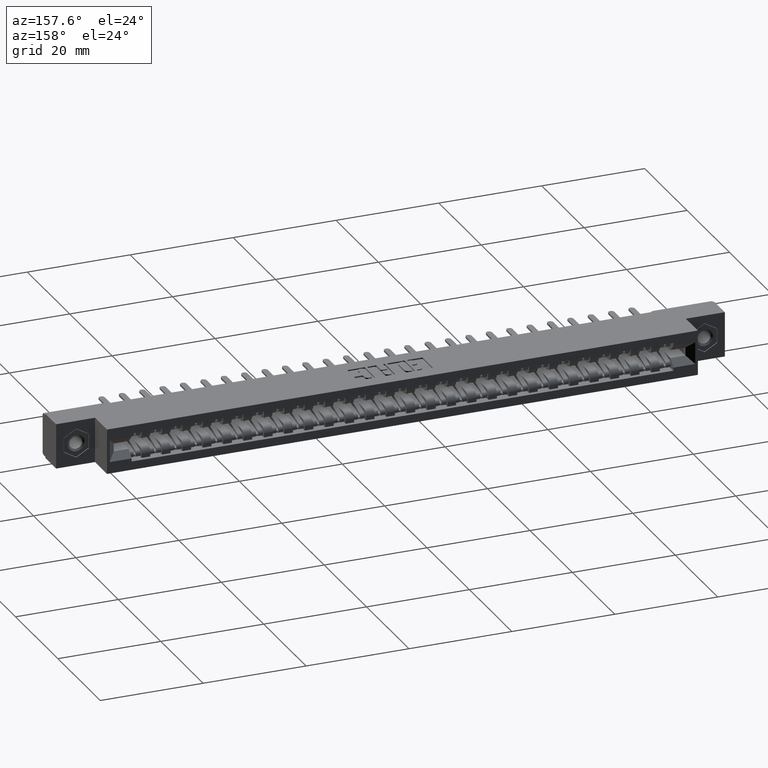
[diagram: clean part render]
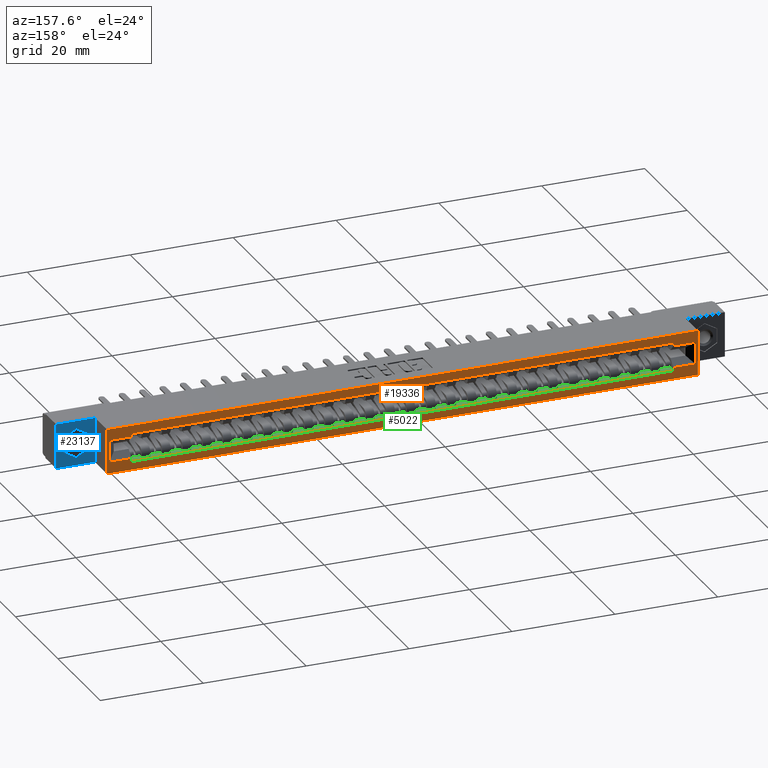
[diagram: same view with three faces highlighted in distinct colors, each labeled with its STEP entity id]
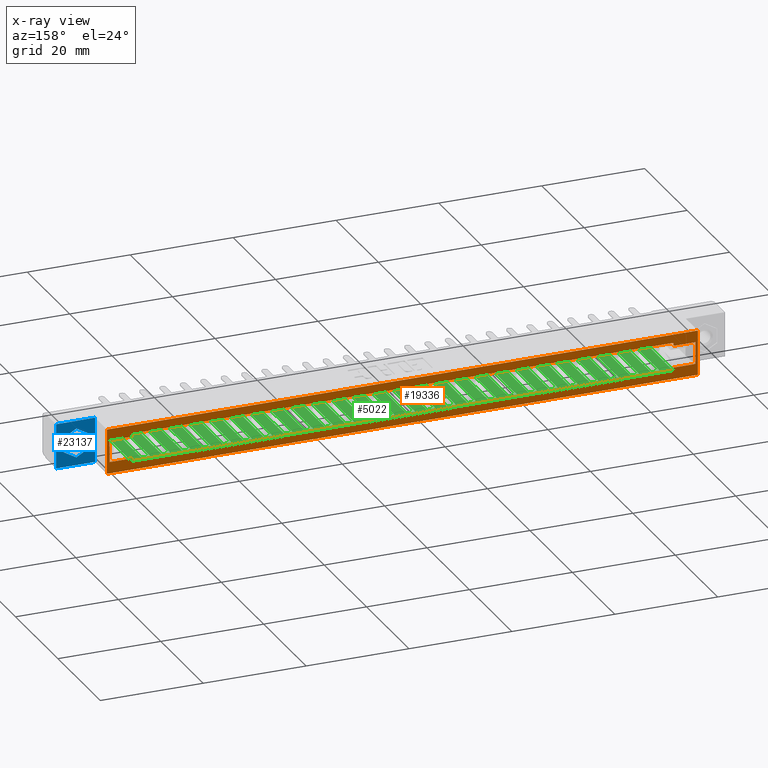
[diagram: x-ray of the same camera — body ghosted, the three highlighted faces saturated]
A machine part, auxiliary view with three faces highlighted in distinct colors.
The next image is the same camera in x-ray (body ghosted, the three faces saturated) — at least one of them is partly hidden behind the body in this view.
Their STEP definitions:

[orange] entity #19336 — the highlighted planar face has unit normal (0, -1, 0).
#17 = CARTESIAN_POINT ( 'NONE',  ( 0.3179999999999994498, 0.4729999999999999760, -0.2555000000000003380 ) ) ;
#89 = CARTESIAN_POINT ( 'NONE',  ( 4.820000000000000284, 0.4729999999999999760, -7.677846839336318392E-15 ) ) ;
#741 = VECTOR ( 'NONE', #17043, 39.37007874015748143 ) ;
#1152 = EDGE_CURVE ( 'NONE', #20252, #20438, #8162, .T. ) ;
#1347 = EDGE_CURVE ( 'NONE', #20955, #16616, #9363, .T. ) ;
#1454 = CARTESIAN_POINT ( 'NONE',  ( 4.632000000000000561, 0.4729999999999999760, -0.06399999999999989031 ) ) ;
#1494 = LINE ( 'NONE', #18610, #25794 ) ;
#1927 = AXIS2_PLACEMENT_3D ( 'NONE', #26644, #12392, #4034 ) ;
#2152 = DIRECTION ( 'NONE',  ( 0.0000000000000000000, 0.0000000000000000000, -1.000000000000000000 ) ) ;
#2551 = VECTOR ( 'NONE', #9535, 39.37007874015748143 ) ;
#3077 = FACE_BOUND ( 'NONE', #8089, .T. ) ;
#3334 = CARTESIAN_POINT ( 'NONE',  ( 0.2979999999999999871, 0.4729999999999999760, -8.900408550786629234E-17 ) ) ;
#3489 = LINE ( 'NONE', #1454, #11845 ) ;
#3643 = CARTESIAN_POINT ( 'NONE',  ( 0.4859999999999998210, 0.4729999999999999760, -0.2790000000000000813 ) ) ;
#3694 = EDGE_CURVE ( 'NONE', #8350, #20252, #12196, .T. ) ;
#4026 = LINE ( 'NONE', #12384, #14831 ) ;
#4034 = DIRECTION ( 'NONE',  ( 0.0000000000000000000, -0.0000000000000000000, -1.000000000000000000 ) ) ;
#4046 = VECTOR ( 'NONE', #7810, 39.37007874015748143 ) ;
#4048 = EDGE_CURVE ( 'NONE', #20344, #15052, #8433, .T. ) ;
#4095 = CARTESIAN_POINT ( 'NONE',  ( 0.5759999999999998455, 0.4729999999999999760, -0.06400000000000011235 ) ) ;
#4194 = EDGE_CURVE ( 'NONE', #19394, #24893, #25931, .T. ) ;
#4577 = DIRECTION ( 'NONE',  ( -1.000000000000000000, 0.0000000000000000000, 6.632971876755665302E-17 ) ) ;
#4698 = CARTESIAN_POINT ( 'NONE',  ( 6.145253356405965477E-18, 0.4729999999999999760, -0.2555000000000002824 ) ) ;
#4941 = VECTOR ( 'NONE', #19059, 39.37007874015748143 ) ;
#5171 = CARTESIAN_POINT ( 'NONE',  ( 0.4859999999999998210, 0.4729999999999999760, -0.08749999999999988343 ) ) ;
#5788 = VERTEX_POINT ( 'NONE', #3643 ) ;
#5943 = PLANE ( 'NONE',  #1927 ) ;
#6348 = VECTOR ( 'NONE', #9195, 39.37007874015748143 ) ;
#7005 = EDGE_CURVE ( 'NONE', #20955, #26927, #18056, .T. ) ;
#7162 = DIRECTION ( 'NONE',  ( 1.000000000000000000, 0.0000000000000000000, -7.023146693035411480E-17 ) ) ;
#7749 = VECTOR ( 'NONE', #26917, 39.37007874015748143 ) ;
#7810 = DIRECTION ( 'NONE',  ( 1.000000000000000000, -0.0000000000000000000, -1.897116662266849457E-16 ) ) ;
#8031 = ORIENTED_EDGE ( 'NONE', *, *, #17914, .T. ) ;
#8089 = EDGE_LOOP ( 'NONE', ( #15730, #25296, #24447, #26560, #20499, #26148, #13340, #8031, #11820, #10202, #12000, #25177 ) ) ;
#8162 = LINE ( 'NONE', #16785, #8809 ) ;
#8350 = VERTEX_POINT ( 'NONE', #26023 ) ;
#8433 = LINE ( 'NONE', #12526, #741 ) ;
#8446 = LINE ( 'NONE', #8850, #21093 ) ;
#8570 = CARTESIAN_POINT ( 'NONE',  ( 0.4859999999999998210, 0.4729999999999999760, -0.06400000000000008460 ) ) ;
#8708 = DIRECTION ( 'NONE',  ( -1.592914282019982578E-15, 0.0000000000000000000, -1.000000000000000000 ) ) ;
#8728 = VERTEX_POINT ( 'NONE', #25989 ) ;
#8809 = VECTOR ( 'NONE', #2152, 39.37007874015748143 ) ;
#8833 = VERTEX_POINT ( 'NONE', #5171 ) ;
#8847 = EDGE_CURVE ( 'NONE', #11126, #5788, #1494, .T. ) ;
#8850 = CARTESIAN_POINT ( 'NONE',  ( 1.694724314511073630E-17, 0.4729999999999999760, -0.08749999999999985567 ) ) ;
#8930 = CARTESIAN_POINT ( 'NONE',  ( 4.800000000000000711, 0.4729999999999999760, -0.3430000000000000271 ) ) ;
#9195 = DIRECTION ( 'NONE',  ( 0.0000000000000000000, 0.0000000000000000000, 1.000000000000000000 ) ) ;
#9363 = LINE ( 'NONE', #3334, #23514 ) ;
#9468 = EDGE_CURVE ( 'NONE', #26927, #16641, #18718, .T. ) ;
#9478 = VECTOR ( 'NONE', #7162, 39.37007874015748143 ) ;
#9535 = DIRECTION ( 'NONE',  ( 1.000000000000000000, 0.0000000000000000000, 0.0000000000000000000 ) ) ;
#9640 = DIRECTION ( 'NONE',  ( -2.986714278787459445E-16, 0.0000000000000000000, -1.000000000000000000 ) ) ;
#9831 = DIRECTION ( 'NONE',  ( -1.000000000000000000, 0.0000000000000000000, 0.0000000000000000000 ) ) ;
#9967 = ORIENTED_EDGE ( 'NONE', *, *, #1347, .F. ) ;
#10202 = ORIENTED_EDGE ( 'NONE', *, *, #3694, .F. ) ;
#10345 = VECTOR ( 'NONE', #14098, 39.37007874015748143 ) ;
#10993 = LINE ( 'NONE', #8930, #6348 ) ;
#11126 = VERTEX_POINT ( 'NONE', #12258 ) ;
#11145 = EDGE_CURVE ( 'NONE', #8833, #20344, #4026, .T. ) ;
#11168 = LINE ( 'NONE', #25419, #25925 ) ;
#11820 = ORIENTED_EDGE ( 'NONE', *, *, #1152, .F. ) ;
#11835 = VECTOR ( 'NONE', #8708, 39.37007874015748143 ) ;
#11845 = VECTOR ( 'NONE', #18170, 39.37007874015748143 ) ;
#11894 = ORIENTED_EDGE ( 'NONE', *, *, #9468, .T. ) ;
#12000 = ORIENTED_EDGE ( 'NONE', *, *, #26313, .F. ) ;
#12196 = LINE ( 'NONE', #4095, #4046 ) ;
#12258 = CARTESIAN_POINT ( 'NONE',  ( 4.632000000000000561, 0.4729999999999999760, -0.2790000000000000813 ) ) ;
#12384 = CARTESIAN_POINT ( 'NONE',  ( 1.694724314511073630E-17, 0.4729999999999999760, -0.08749999999999985567 ) ) ;
#12392 = DIRECTION ( 'NONE',  ( 0.0000000000000000000, -1.000000000000000000, 0.0000000000000000000 ) ) ;
#12526 = CARTESIAN_POINT ( 'NONE',  ( 0.3179999999999994498, 0.4729999999999999760, -0.3430000000000000271 ) ) ;
#12600 = EDGE_CURVE ( 'NONE', #19394, #11126, #3489, .T. ) ;
#12829 = DIRECTION ( 'NONE',  ( 1.000000000000000000, 0.0000000000000000000, -7.023146693035411480E-17 ) ) ;
#13340 = ORIENTED_EDGE ( 'NONE', *, *, #23351, .T. ) ;
#13990 = CARTESIAN_POINT ( 'NONE',  ( 0.2979999999999999316, 0.4729999999999999760, 0.0000000000000000000 ) ) ;
#14098 = DIRECTION ( 'NONE',  ( -0.0000000000000000000, -0.0000000000000000000, 1.000000000000000000 ) ) ;
#14605 = LINE ( 'NONE', #8570, #7749 ) ;
#14831 = VECTOR ( 'NONE', #18157, 39.37007874015748143 ) ;
#15052 = VERTEX_POINT ( 'NONE', #17 ) ;
#15730 = ORIENTED_EDGE ( 'NONE', *, *, #4048, .T. ) ;
#16247 = CARTESIAN_POINT ( 'NONE',  ( 4.632000000000000561, 0.4729999999999999760, -0.2555000000000006155 ) ) ;
#16616 = VERTEX_POINT ( 'NONE', #19750 ) ;
#16641 = VERTEX_POINT ( 'NONE', #21276 ) ;
#16785 = CARTESIAN_POINT ( 'NONE',  ( 4.632000000000000561, 0.4729999999999999760, -0.06399999999999989031 ) ) ;
#17043 = DIRECTION ( 'NONE',  ( 0.0000000000000000000, 0.0000000000000000000, -1.000000000000000000 ) ) ;
#17196 = VERTEX_POINT ( 'NONE', #17800 ) ;
#17633 = CARTESIAN_POINT ( 'NONE',  ( 0.0000000000000000000, 0.4729999999999999760, 0.0000000000000000000 ) ) ;
#17800 = CARTESIAN_POINT ( 'NONE',  ( 4.800000000000000711, 0.4729999999999999760, -0.08750000000000017486 ) ) ;
#17914 = EDGE_CURVE ( 'NONE', #17196, #20438, #8446, .T. ) ;
#18056 = LINE ( 'NONE', #17633, #2551 ) ;
#18157 = DIRECTION ( 'NONE',  ( -1.000000000000000000, 0.0000000000000000000, 6.632971876755665302E-17 ) ) ;
#18170 = DIRECTION ( 'NONE',  ( 0.0000000000000000000, 0.0000000000000000000, -1.000000000000000000 ) ) ;
#18221 = LINE ( 'NONE', #19983, #10345 ) ;
#18610 = CARTESIAN_POINT ( 'NONE',  ( 0.5759999999999998455, 0.4729999999999999760, -0.2790000000000000813 ) ) ;
#18718 = LINE ( 'NONE', #89, #11835 ) ;
#19059 = DIRECTION ( 'NONE',  ( -1.000000000000000000, -0.0000000000000000000, -0.0000000000000000000 ) ) ;
#19336 = ADVANCED_FACE ( 'NONE', ( #3077, #19787 ), #5943, .F. ) ;
#19394 = VERTEX_POINT ( 'NONE', #16247 ) ;
#19750 = CARTESIAN_POINT ( 'NONE',  ( 0.2979999999999998761, 0.4729999999999999760, -0.3430000000000000271 ) ) ;
#19787 = FACE_OUTER_BOUND ( 'NONE', #23216, .T. ) ;
#19983 = CARTESIAN_POINT ( 'NONE',  ( 0.4859999999999998210, 0.4729999999999999760, -0.06400000000000008460 ) ) ;
#20151 = CARTESIAN_POINT ( 'NONE',  ( 0.3179999999999994498, 0.4729999999999999760, -0.08749999999999988343 ) ) ;
#20252 = VERTEX_POINT ( 'NONE', #22593 ) ;
#20344 = VERTEX_POINT ( 'NONE', #20151 ) ;
#20438 = VERTEX_POINT ( 'NONE', #23239 ) ;
#20479 = EDGE_CURVE ( 'NONE', #15052, #8728, #11168, .T. ) ;
#20499 = ORIENTED_EDGE ( 'NONE', *, *, #12600, .F. ) ;
#20786 = EDGE_CURVE ( 'NONE', #16641, #16616, #25361, .T. ) ;
#20955 = VERTEX_POINT ( 'NONE', #13990 ) ;
#21093 = VECTOR ( 'NONE', #4577, 39.37007874015748143 ) ;
#21276 = CARTESIAN_POINT ( 'NONE',  ( 4.820000000000000284, 0.4729999999999999760, -0.3430000000000000271 ) ) ;
#21280 = ORIENTED_EDGE ( 'NONE', *, *, #7005, .T. ) ;
#22593 = CARTESIAN_POINT ( 'NONE',  ( 4.632000000000000561, 0.4729999999999999760, -0.06399999999999989031 ) ) ;
#23050 = CARTESIAN_POINT ( 'NONE',  ( 4.800000000000000711, 0.4729999999999999760, -0.2555000000000006155 ) ) ;
#23216 = EDGE_LOOP ( 'NONE', ( #11894, #23554, #9967, #21280 ) ) ;
#23239 = CARTESIAN_POINT ( 'NONE',  ( 4.632000000000000561, 0.4729999999999999760, -0.08750000000000016098 ) ) ;
#23351 = EDGE_CURVE ( 'NONE', #24893, #17196, #10993, .T. ) ;
#23514 = VECTOR ( 'NONE', #9640, 39.37007874015748143 ) ;
#23554 = ORIENTED_EDGE ( 'NONE', *, *, #20786, .T. ) ;
#23587 = CARTESIAN_POINT ( 'NONE',  ( 0.0000000000000000000, 0.4729999999999999760, -0.3430000000000000271 ) ) ;
#23908 = EDGE_CURVE ( 'NONE', #5788, #8728, #18221, .T. ) ;
#24447 = ORIENTED_EDGE ( 'NONE', *, *, #23908, .F. ) ;
#24893 = VERTEX_POINT ( 'NONE', #23050 ) ;
#25177 = ORIENTED_EDGE ( 'NONE', *, *, #11145, .T. ) ;
#25296 = ORIENTED_EDGE ( 'NONE', *, *, #20479, .T. ) ;
#25361 = LINE ( 'NONE', #23587, #4941 ) ;
#25419 = CARTESIAN_POINT ( 'NONE',  ( 6.145253356405965477E-18, 0.4729999999999999760, -0.2555000000000002824 ) ) ;
#25794 = VECTOR ( 'NONE', #9831, 39.37007874015748143 ) ;
#25925 = VECTOR ( 'NONE', #12829, 39.37007874015748143 ) ;
#25931 = LINE ( 'NONE', #4698, #9478 ) ;
#25989 = CARTESIAN_POINT ( 'NONE',  ( 0.4859999999999998210, 0.4729999999999999760, -0.2555000000000003380 ) ) ;
#26023 = CARTESIAN_POINT ( 'NONE',  ( 0.4859999999999998210, 0.4729999999999999760, -0.06400000000000008460 ) ) ;
#26148 = ORIENTED_EDGE ( 'NONE', *, *, #4194, .T. ) ;
#26313 = EDGE_CURVE ( 'NONE', #8833, #8350, #14605, .T. ) ;
#26560 = ORIENTED_EDGE ( 'NONE', *, *, #8847, .F. ) ;
#26644 = CARTESIAN_POINT ( 'NONE',  ( 0.0000000000000000000, 0.4729999999999999760, -0.3430000000000000271 ) ) ;
#26917 = DIRECTION ( 'NONE',  ( -0.0000000000000000000, -0.0000000000000000000, 1.000000000000000000 ) ) ;
#26927 = VERTEX_POINT ( 'NONE', #26957 ) ;
#26957 = CARTESIAN_POINT ( 'NONE',  ( 4.820000000000000284, 0.4729999999999999760, 0.0000000000000000000 ) ) ;

[blue] entity #23137 — the highlighted planar face has unit normal (0, 1, 0).
#102 = CARTESIAN_POINT ( 'NONE',  ( 4.866500000000000270, 0.2499999999999999722, -0.1157856990231999478 ) ) ;
#637 = VECTOR ( 'NONE', #3865, 39.37007874015749564 ) ;
#1348 = EDGE_LOOP ( 'NONE', ( #8875, #26007, #15217, #21260 ) ) ;
#1728 = CARTESIAN_POINT ( 'NONE',  ( 4.963000000000000966, 0.2499999999999999722, -0.2829286019535971475 ) ) ;
#2082 = VERTEX_POINT ( 'NONE', #19445 ) ;
#2681 = LINE ( 'NONE', #14732, #8411 ) ;
#3219 = EDGE_CURVE ( 'NONE', #2082, #4932, #12362, .T. ) ;
#3358 = LINE ( 'NONE', #17331, #11859 ) ;
#3865 = DIRECTION ( 'NONE',  ( -0.8660254037844384856, 0.0000000000000000000, -0.5000000000000002220 ) ) ;
#4076 = VECTOR ( 'NONE', #8288, 39.37007874015748143 ) ;
#4403 = VECTOR ( 'NONE', #26604, 39.37007874015748143 ) ;
#4726 = ORIENTED_EDGE ( 'NONE', *, *, #19420, .F. ) ;
#4915 = ORIENTED_EDGE ( 'NONE', *, *, #20588, .F. ) ;
#4932 = VERTEX_POINT ( 'NONE', #20700 ) ;
#5135 = DIRECTION ( 'NONE',  ( 0.0000000000000000000, 0.0000000000000000000, -1.000000000000000000 ) ) ;
#5722 = VERTEX_POINT ( 'NONE', #11732 ) ;
#5752 = VECTOR ( 'NONE', #22448, 39.37007874015748143 ) ;
#5901 = EDGE_CURVE ( 'NONE', #5722, #8585, #18328, .T. ) ;
#6036 = VERTEX_POINT ( 'NONE', #23445 ) ;
#6336 = CARTESIAN_POINT ( 'NONE',  ( 4.866500000000000270, 0.2499999999999999722, -0.2272143009767980948 ) ) ;
#6516 = CARTESIAN_POINT ( 'NONE',  ( 4.963000000000000966, 0.2499999999999999722, -0.06007139804640090203 ) ) ;
#6959 = VERTEX_POINT ( 'NONE', #17756 ) ;
#7875 = DIRECTION ( 'NONE',  ( 0.8660254037844383745, 0.0000000000000000000, -0.5000000000000004441 ) ) ;
#8288 = DIRECTION ( 'NONE',  ( -0.8660254037844389297, 0.0000000000000000000, 0.4999999999999993894 ) ) ;
#8411 = VECTOR ( 'NONE', #23086, 39.37007874015748143 ) ;
#8585 = VERTEX_POINT ( 'NONE', #10813 ) ;
#8717 = VECTOR ( 'NONE', #7875, 39.37007874015748143 ) ;
#8875 = ORIENTED_EDGE ( 'NONE', *, *, #5901, .F. ) ;
#9238 = LINE ( 'NONE', #17891, #14564 ) ;
#10625 = VECTOR ( 'NONE', #23090, 39.37007874015749564 ) ;
#10813 = CARTESIAN_POINT ( 'NONE',  ( 4.820000000000000284, 0.2499999999999999722, -0.3430000000000000271 ) ) ;
#10941 = ORIENTED_EDGE ( 'NONE', *, *, #3219, .F. ) ;
#11058 = EDGE_CURVE ( 'NONE', #20427, #14111, #24581, .T. ) ;
#11204 = VERTEX_POINT ( 'NONE', #6336 ) ;
#11686 = ORIENTED_EDGE ( 'NONE', *, *, #19014, .F. ) ;
#11732 = CARTESIAN_POINT ( 'NONE',  ( 4.820000000000000284, 0.2499999999999999722, 0.0000000000000000000 ) ) ;
#11859 = VECTOR ( 'NONE', #5135, 39.37007874015748143 ) ;
#12362 = LINE ( 'NONE', #16213, #637 ) ;
#13369 = FACE_BOUND ( 'NONE', #21054, .T. ) ;
#14007 = CARTESIAN_POINT ( 'NONE',  ( 0.0000000000000000000, 0.2499999999999999722, -0.3430000000000000271 ) ) ;
#14111 = VERTEX_POINT ( 'NONE', #15592 ) ;
#14466 = VERTEX_POINT ( 'NONE', #15559 ) ;
#14492 = EDGE_CURVE ( 'NONE', #6036, #6959, #3358, .T. ) ;
#14564 = VECTOR ( 'NONE', #24189, 39.37007874015748143 ) ;
#14732 = CARTESIAN_POINT ( 'NONE',  ( 0.0000000000000000000, 0.2499999999999999722, 0.0000000000000000000 ) ) ;
#15217 = ORIENTED_EDGE ( 'NONE', *, *, #14492, .T. ) ;
#15514 = EDGE_CURVE ( 'NONE', #11204, #14466, #24762, .T. ) ;
#15559 = CARTESIAN_POINT ( 'NONE',  ( 4.866500000000000270, 0.2499999999999999722, -0.1157856990231999478 ) ) ;
#15592 = CARTESIAN_POINT ( 'NONE',  ( 5.059500000000000774, 0.2499999999999999722, -0.1157856990232001143 ) ) ;
#16213 = CARTESIAN_POINT ( 'NONE',  ( 5.059500000000000774, 0.2499999999999999722, -0.2272143009767979560 ) ) ;
#16261 = DIRECTION ( 'NONE',  ( -1.592914282019982578E-15, 0.0000000000000000000, -1.000000000000000000 ) ) ;
#16861 = EDGE_CURVE ( 'NONE', #6959, #8585, #24420, .T. ) ;
#17278 = AXIS2_PLACEMENT_3D ( 'NONE', #18149, #26352, #18012 ) ;
#17331 = CARTESIAN_POINT ( 'NONE',  ( 5.118000000000000327, 0.2499999999999999722, 0.0000000000000000000 ) ) ;
#17756 = CARTESIAN_POINT ( 'NONE',  ( 5.118000000000000327, 0.2499999999999999722, -0.3430000000000000271 ) ) ;
#17891 = CARTESIAN_POINT ( 'NONE',  ( 5.059500000000000774, 0.2499999999999999722, -0.1157856990232001143 ) ) ;
#17944 = EDGE_CURVE ( 'NONE', #5722, #6036, #2681, .T. ) ;
#18012 = DIRECTION ( 'NONE',  ( 0.0000000000000000000, 0.0000000000000000000, 1.000000000000000000 ) ) ;
#18149 = CARTESIAN_POINT ( 'NONE',  ( 0.0000000000000000000, 0.2499999999999999722, 0.0000000000000000000 ) ) ;
#18328 = LINE ( 'NONE', #26660, #21729 ) ;
#18432 = FACE_OUTER_BOUND ( 'NONE', #1348, .T. ) ;
#19014 = EDGE_CURVE ( 'NONE', #14466, #20427, #24748, .T. ) ;
#19420 = EDGE_CURVE ( 'NONE', #4932, #11204, #24463, .T. ) ;
#19445 = CARTESIAN_POINT ( 'NONE',  ( 5.059500000000000774, 0.2499999999999999722, -0.2272143009767979560 ) ) ;
#19893 = ORIENTED_EDGE ( 'NONE', *, *, #11058, .F. ) ;
#20427 = VERTEX_POINT ( 'NONE', #6516 ) ;
#20588 = EDGE_CURVE ( 'NONE', #14111, #2082, #9238, .T. ) ;
#20700 = CARTESIAN_POINT ( 'NONE',  ( 4.963000000000000966, 0.2499999999999999722, -0.2829286019535974250 ) ) ;
#21054 = EDGE_LOOP ( 'NONE', ( #10941, #4915, #19893, #11686, #21498, #4726 ) ) ;
#21260 = ORIENTED_EDGE ( 'NONE', *, *, #16861, .T. ) ;
#21498 = ORIENTED_EDGE ( 'NONE', *, *, #15514, .F. ) ;
#21729 = VECTOR ( 'NONE', #16261, 39.37007874015748143 ) ;
#22448 = DIRECTION ( 'NONE',  ( 0.0000000000000000000, 0.0000000000000000000, 1.000000000000000000 ) ) ;
#22571 = CARTESIAN_POINT ( 'NONE',  ( 4.866500000000000270, 0.2499999999999999722, -0.2272143009767980948 ) ) ;
#23086 = DIRECTION ( 'NONE',  ( 1.000000000000000000, -0.0000000000000000000, 0.0000000000000000000 ) ) ;
#23090 = DIRECTION ( 'NONE',  ( 0.8660254037844390407, 0.0000000000000000000, 0.4999999999999991673 ) ) ;
#23137 = ADVANCED_FACE ( 'NONE', ( #13369, #18432 ), #24449, .T. ) ;
#23445 = CARTESIAN_POINT ( 'NONE',  ( 5.118000000000000327, 0.2499999999999999722, 0.0000000000000000000 ) ) ;
#24189 = DIRECTION ( 'NONE',  ( 0.0000000000000000000, 0.0000000000000000000, -1.000000000000000000 ) ) ;
#24420 = LINE ( 'NONE', #14007, #4403 ) ;
#24449 = PLANE ( 'NONE',  #17278 ) ;
#24463 = LINE ( 'NONE', #1728, #4076 ) ;
#24581 = LINE ( 'NONE', #24706, #8717 ) ;
#24706 = CARTESIAN_POINT ( 'NONE',  ( 4.963000000000000966, 0.2499999999999999722, -0.06007139804640090203 ) ) ;
#24748 = LINE ( 'NONE', #102, #10625 ) ;
#24762 = LINE ( 'NONE', #22571, #5752 ) ;
#26007 = ORIENTED_EDGE ( 'NONE', *, *, #17944, .T. ) ;
#26352 = DIRECTION ( 'NONE',  ( 0.0000000000000000000, 1.000000000000000000, -0.0000000000000000000 ) ) ;
#26604 = DIRECTION ( 'NONE',  ( -1.000000000000000000, 0.0000000000000000000, 0.0000000000000000000 ) ) ;
#26660 = CARTESIAN_POINT ( 'NONE',  ( 4.820000000000000284, 0.2499999999999999722, -7.677846839336318392E-15 ) ) ;

[green] entity #5022 — the highlighted planar face has unit normal (0, 0, -1).
#26 = CARTESIAN_POINT ( 'NONE',  ( 0.4859999999999998210, 0.4419999999999999485, -0.2790000000000000813 ) ) ;
#52 = VERTEX_POINT ( 'NONE', #24297 ) ;
#87 = VERTEX_POINT ( 'NONE', #8407 ) ;
#109 = EDGE_CURVE ( 'NONE', #19521, #15335, #4020, .T. ) ;
#120 = EDGE_CURVE ( 'NONE', #2368, #18865, #5807, .T. ) ;
#132 = ORIENTED_EDGE ( 'NONE', *, *, #1559, .T. ) ;
#150 = VERTEX_POINT ( 'NONE', #1713 ) ;
#158 = ORIENTED_EDGE ( 'NONE', *, *, #5447, .T. ) ;
#165 = LINE ( 'NONE', #8645, #16498 ) ;
#201 = DIRECTION ( 'NONE',  ( -0.0000000000000000000, 1.000000000000000000, -0.0000000000000000000 ) ) ;
#222 = LINE ( 'NONE', #13087, #3797 ) ;
#243 = CARTESIAN_POINT ( 'NONE',  ( 4.541999999999998927, 0.1160000000000000059, -0.2790000000000000813 ) ) ;
#272 = CARTESIAN_POINT ( 'NONE',  ( 2.513999999999999346, 0.05099999999999999672, -0.2790000000000000813 ) ) ;
#290 = CARTESIAN_POINT ( 'NONE',  ( 0.8879999999999997895, 0.4419999999999999485, -0.2790000000000000813 ) ) ;
#407 = ORIENTED_EDGE ( 'NONE', *, *, #12247, .T. ) ;
#437 = EDGE_CURVE ( 'NONE', #2060, #19486, #15377, .T. ) ;
#489 = VECTOR ( 'NONE', #8907, 39.37007874015748143 ) ;
#510 = LINE ( 'NONE', #8733, #25453 ) ;
#532 = EDGE_CURVE ( 'NONE', #23683, #24450, #857, .T. ) ;
#546 = CARTESIAN_POINT ( 'NONE',  ( 0.5759999999999998455, 0.1160000000000000059, -0.2790000000000000813 ) ) ;
#591 = DIRECTION ( 'NONE',  ( -0.0000000000000000000, 1.000000000000000000, -0.0000000000000000000 ) ) ;
#594 = LINE ( 'NONE', #8937, #9169 ) ;
#605 = EDGE_CURVE ( 'NONE', #5384, #24721, #16201, .T. ) ;
#668 = DIRECTION ( 'NONE',  ( -1.000000000000000000, 0.0000000000000000000, 0.0000000000000000000 ) ) ;
#678 = EDGE_CURVE ( 'NONE', #3529, #10504, #14261, .T. ) ;
#688 = EDGE_CURVE ( 'NONE', #6396, #26129, #6041, .T. ) ;
#702 = CARTESIAN_POINT ( 'NONE',  ( 1.979999999999999538, 0.1160000000000000059, -0.2790000000000000813 ) ) ;
#711 = VERTEX_POINT ( 'NONE', #11326 ) ;
#717 = CARTESIAN_POINT ( 'NONE',  ( 3.449999999999999734, 0.1160000000000000059, -0.2790000000000000813 ) ) ;
#719 = DIRECTION ( 'NONE',  ( -1.000000000000000000, -0.0000000000000000000, -0.0000000000000000000 ) ) ;
#745 = ORIENTED_EDGE ( 'NONE', *, *, #6196, .F. ) ;
#767 = VERTEX_POINT ( 'NONE', #6801 ) ;
#810 = DIRECTION ( 'NONE',  ( 1.000000000000000000, 0.0000000000000000000, 0.0000000000000000000 ) ) ;
#849 = LINE ( 'NONE', #9454, #12233 ) ;
#857 = LINE ( 'NONE', #17562, #10136 ) ;
#904 = VECTOR ( 'NONE', #5685, 39.37007874015748143 ) ;
#914 = CARTESIAN_POINT ( 'NONE',  ( 0.5759999999999998455, 0.05099999999999999672, -0.2790000000000000813 ) ) ;
#1041 = EDGE_CURVE ( 'NONE', #21491, #150, #16916, .T. ) ;
#1072 = CARTESIAN_POINT ( 'NONE',  ( 4.229999999999999538, 0.1160000000000000059, -0.2790000000000000813 ) ) ;
#1075 = VECTOR ( 'NONE', #7834, 39.37007874015748143 ) ;
#1085 = CARTESIAN_POINT ( 'NONE',  ( 4.073999999999998956, 0.05099999999999999672, -0.2790000000000000813 ) ) ;
#1113 = ORIENTED_EDGE ( 'NONE', *, *, #109, .T. ) ;
#1168 = LINE ( 'NONE', #24470, #904 ) ;
#1181 = CARTESIAN_POINT ( 'NONE',  ( 2.760000000000000231, 0.1160000000000000059, -0.2790000000000000813 ) ) ;
#1188 = DIRECTION ( 'NONE',  ( -0.0000000000000000000, 1.000000000000000000, -0.0000000000000000000 ) ) ;
#1308 = LINE ( 'NONE', #24310, #15877 ) ;
#1322 = CARTESIAN_POINT ( 'NONE',  ( 4.319999999999999396, 0.4419999999999999485, -0.2790000000000000813 ) ) ;
#1367 = ORIENTED_EDGE ( 'NONE', *, *, #11482, .F. ) ;
#1375 = CARTESIAN_POINT ( 'NONE',  ( 2.447999999999999510, 0.05099999999999999672, -0.2790000000000000813 ) ) ;
#1386 = ORIENTED_EDGE ( 'NONE', *, *, #15349, .T. ) ;
#1413 = LINE ( 'NONE', #15932, #23373 ) ;
#1429 = LINE ( 'NONE', #18145, #17502 ) ;
#1465 = VERTEX_POINT ( 'NONE', #21841 ) ;
#1494 = LINE ( 'NONE', #18610, #25794 ) ;
#1495 = DIRECTION ( 'NONE',  ( -0.0000000000000000000, 1.000000000000000000, -0.0000000000000000000 ) ) ;
#1549 = EDGE_CURVE ( 'NONE', #8898, #19969, #8277, .T. ) ;
#1559 = EDGE_CURVE ( 'NONE', #24253, #10215, #16759, .T. ) ;
#1680 = VECTOR ( 'NONE', #20643, 39.37007874015748143 ) ;
#1713 = CARTESIAN_POINT ( 'NONE',  ( 2.915999999999999925, 0.4419999999999999485, -0.2790000000000000813 ) ) ;
#1716 = DIRECTION ( 'NONE',  ( -0.0000000000000000000, 1.000000000000000000, -0.0000000000000000000 ) ) ;
#1769 = CARTESIAN_POINT ( 'NONE',  ( 0.5759999999999998455, 0.05099999999999999672, -0.2790000000000000813 ) ) ;
#1792 = VECTOR ( 'NONE', #3449, 39.37007874015748143 ) ;
#1794 = ORIENTED_EDGE ( 'NONE', *, *, #10792, .F. ) ;
#1804 = LINE ( 'NONE', #25067, #10999 ) ;
#1811 = ORIENTED_EDGE ( 'NONE', *, *, #20358, .F. ) ;
#1826 = CARTESIAN_POINT ( 'NONE',  ( 0.5759999999999998455, 0.05099999999999999672, -0.2790000000000000813 ) ) ;
#1837 = VERTEX_POINT ( 'NONE', #13595 ) ;
#1864 = CARTESIAN_POINT ( 'NONE',  ( 3.851999999999999424, 0.05099999999999999672, -0.2790000000000000813 ) ) ;
#1868 = VERTEX_POINT ( 'NONE', #17845 ) ;
#1874 = EDGE_CURVE ( 'NONE', #8218, #711, #18541, .T. ) ;
#1887 = LINE ( 'NONE', #22822, #17799 ) ;
#1968 = EDGE_CURVE ( 'NONE', #9528, #24650, #2080, .T. ) ;
#1983 = VERTEX_POINT ( 'NONE', #14666 ) ;
#2006 = DIRECTION ( 'NONE',  ( 1.000000000000000000, 0.0000000000000000000, 0.0000000000000000000 ) ) ;
#2018 = VERTEX_POINT ( 'NONE', #6440 ) ;
#2038 = VECTOR ( 'NONE', #4311, 39.37007874015748143 ) ;
#2046 = LINE ( 'NONE', #14108, #23314 ) ;
#2060 = VERTEX_POINT ( 'NONE', #2351 ) ;
#2080 = LINE ( 'NONE', #9882, #2110 ) ;
#2110 = VECTOR ( 'NONE', #4123, 39.37007874015748143 ) ;
#2119 = CARTESIAN_POINT ( 'NONE',  ( 1.355999999999999650, 0.05099999999999999672, -0.2790000000000000813 ) ) ;
#2129 = EDGE_CURVE ( 'NONE', #15182, #19536, #165, .T. ) ;
#2175 = CARTESIAN_POINT ( 'NONE',  ( 3.605999999999998984, 0.05099999999999999672, -0.2790000000000000813 ) ) ;
#2212 = DIRECTION ( 'NONE',  ( -0.0000000000000000000, 1.000000000000000000, -0.0000000000000000000 ) ) ;
#2253 = EDGE_CURVE ( 'NONE', #26647, #19480, #7114, .T. ) ;
#2264 = VERTEX_POINT ( 'NONE', #1085 ) ;
#2275 = VERTEX_POINT ( 'NONE', #9432 ) ;
#2282 = DIRECTION ( 'NONE',  ( -0.0000000000000000000, 1.000000000000000000, -0.0000000000000000000 ) ) ;
#2304 = DIRECTION ( 'NONE',  ( -1.000000000000000000, -0.0000000000000000000, -0.0000000000000000000 ) ) ;
#2320 = LINE ( 'NONE', #10257, #7853 ) ;
#2350 = ORIENTED_EDGE ( 'NONE', *, *, #18315, .F. ) ;
#2351 = CARTESIAN_POINT ( 'NONE',  ( 3.383999999999999897, 0.05099999999999999672, -0.2790000000000000813 ) ) ;
#2368 = VERTEX_POINT ( 'NONE', #24639 ) ;
#2414 = CARTESIAN_POINT ( 'NONE',  ( 0.4859999999999998210, 0.4419999999999999485, -0.2790000000000000813 ) ) ;
#2478 = DIRECTION ( 'NONE',  ( -1.000000000000000000, -0.0000000000000000000, -0.0000000000000000000 ) ) ;
#2481 = CARTESIAN_POINT ( 'NONE',  ( 0.6419999999999999041, 0.4419999999999999485, -0.2790000000000000813 ) ) ;
#2493 = VECTOR ( 'NONE', #1188, 39.37007874015748143 ) ;
#2503 = DIRECTION ( 'NONE',  ( -0.0000000000000000000, 1.000000000000000000, -0.0000000000000000000 ) ) ;
#2553 = LINE ( 'NONE', #8572, #21079 ) ;
#2565 = ORIENTED_EDGE ( 'NONE', *, *, #20864, .T. ) ;
#2633 = VERTEX_POINT ( 'NONE', #7488 ) ;
#2662 = ORIENTED_EDGE ( 'NONE', *, *, #4569, .F. ) ;
#2699 = CARTESIAN_POINT ( 'NONE',  ( 3.449999999999999734, 0.05099999999999999672, -0.2790000000000000813 ) ) ;
#2706 = LINE ( 'NONE', #8988, #4295 ) ;
#2763 = CARTESIAN_POINT ( 'NONE',  ( 0.5759999999999998455, 0.05099999999999999672, -0.2790000000000000813 ) ) ;
#2786 = EDGE_CURVE ( 'NONE', #9059, #3149, #26772, .T. ) ;
#2804 = CARTESIAN_POINT ( 'NONE',  ( 0.4859999999999998210, 0.4419999999999999485, -0.2790000000000000813 ) ) ;
#2840 = EDGE_CURVE ( 'NONE', #17969, #3529, #8017, .T. ) ;
#2866 = EDGE_CURVE ( 'NONE', #19480, #4099, #24709, .T. ) ;
#2907 = CARTESIAN_POINT ( 'NONE',  ( 0.4859999999999998210, 0.4419999999999999485, -0.2790000000000000813 ) ) ;
#2947 = VECTOR ( 'NONE', #1716, 39.37007874015748143 ) ;
#2954 = VECTOR ( 'NONE', #14843, 39.37007874015748143 ) ;
#2959 = VERTEX_POINT ( 'NONE', #17572 ) ;
#2989 = EDGE_CURVE ( 'NONE', #23333, #14613, #11137, .T. ) ;
#2996 = CARTESIAN_POINT ( 'NONE',  ( 3.917999999999999705, 0.05099999999999999672, -0.2790000000000000813 ) ) ;
#3005 = VECTOR ( 'NONE', #15682, 39.37007874015748143 ) ;
#3060 = DIRECTION ( 'NONE',  ( -0.0000000000000000000, 1.000000000000000000, -0.0000000000000000000 ) ) ;
#3064 = VERTEX_POINT ( 'NONE', #17164 ) ;
#3104 = ORIENTED_EDGE ( 'NONE', *, *, #9556, .F. ) ;
#3105 = VECTOR ( 'NONE', #20300, 39.37007874015748143 ) ;
#3142 = LINE ( 'NONE', #3409, #21908 ) ;
#3149 = VERTEX_POINT ( 'NONE', #9477 ) ;
#3170 = EDGE_CURVE ( 'NONE', #4089, #27005, #1413, .T. ) ;
#3199 = EDGE_CURVE ( 'NONE', #17615, #23611, #3995, .T. ) ;
#3218 = ORIENTED_EDGE ( 'NONE', *, *, #13695, .T. ) ;
#3228 = VERTEX_POINT ( 'NONE', #4127 ) ;
#3253 = ORIENTED_EDGE ( 'NONE', *, *, #10982, .F. ) ;
#3260 = DIRECTION ( 'NONE',  ( 1.000000000000000000, 0.0000000000000000000, 0.0000000000000000000 ) ) ;
#3376 = CARTESIAN_POINT ( 'NONE',  ( 1.577999999999999847, 0.05099999999999999672, -0.2790000000000000813 ) ) ;
#3384 = VECTOR ( 'NONE', #16639, 39.37007874015748143 ) ;
#3402 = LINE ( 'NONE', #24236, #17840 ) ;
#3409 = CARTESIAN_POINT ( 'NONE',  ( 0.4859999999999998210, 0.4419999999999999485, -0.2790000000000000813 ) ) ;
#3449 = DIRECTION ( 'NONE',  ( -0.0000000000000000000, 1.000000000000000000, -0.0000000000000000000 ) ) ;
#3450 = VECTOR ( 'NONE', #2282, 39.37007874015748143 ) ;
#3460 = VERTEX_POINT ( 'NONE', #290 ) ;
#3529 = VERTEX_POINT ( 'NONE', #2481 ) ;
#3636 = VERTEX_POINT ( 'NONE', #5471 ) ;
#3641 = ORIENTED_EDGE ( 'NONE', *, *, #21398, .F. ) ;
#3643 = CARTESIAN_POINT ( 'NONE',  ( 0.4859999999999998210, 0.4729999999999999760, -0.2790000000000000813 ) ) ;
#3673 = DIRECTION ( 'NONE',  ( -1.000000000000000000, -0.0000000000000000000, -0.0000000000000000000 ) ) ;
#3676 = DIRECTION ( 'NONE',  ( -1.000000000000000000, -0.0000000000000000000, -0.0000000000000000000 ) ) ;
#3690 = LINE ( 'NONE', #24391, #11492 ) ;
#3738 = DIRECTION ( 'NONE',  ( 1.000000000000000000, 0.0000000000000000000, 0.0000000000000000000 ) ) ;
#3755 = EDGE_CURVE ( 'NONE', #18462, #10057, #2046, .T. ) ;
#3797 = VECTOR ( 'NONE', #15001, 39.37007874015748143 ) ;
#3856 = ORIENTED_EDGE ( 'NONE', *, *, #6557, .F. ) ;
#3898 = CARTESIAN_POINT ( 'NONE',  ( 3.761999999999999567, 0.05099999999999999672, -0.2790000000000000813 ) ) ;
#3929 = CARTESIAN_POINT ( 'NONE',  ( 1.979999999999999538, 0.05099999999999999672, -0.2790000000000000813 ) ) ;
#3956 = CARTESIAN_POINT ( 'NONE',  ( 1.421999999999999709, 0.05099999999999999672, -0.2790000000000000813 ) ) ;
#3986 = CARTESIAN_POINT ( 'NONE',  ( 3.137999999999999901, 0.05099999999999999672, -0.2790000000000000813 ) ) ;
#3995 = LINE ( 'NONE', #1826, #21617 ) ;
#4003 = CARTESIAN_POINT ( 'NONE',  ( 2.357999999999999652, 0.4419999999999999485, -0.2790000000000000813 ) ) ;
#4020 = LINE ( 'NONE', #22515, #16286 ) ;
#4089 = VERTEX_POINT ( 'NONE', #9090 ) ;
#4096 = ORIENTED_EDGE ( 'NONE', *, *, #12229, .F. ) ;
#4099 = VERTEX_POINT ( 'NONE', #13204 ) ;
#4116 = DIRECTION ( 'NONE',  ( -1.000000000000000000, -0.0000000000000000000, -0.0000000000000000000 ) ) ;
#4123 = DIRECTION ( 'NONE',  ( -0.0000000000000000000, 1.000000000000000000, -0.0000000000000000000 ) ) ;
#4127 = CARTESIAN_POINT ( 'NONE',  ( 3.293999999999999151, 0.4419999999999999485, -0.2790000000000000813 ) ) ;
#4141 = ORIENTED_EDGE ( 'NONE', *, *, #2989, .F. ) ;
#4157 = LINE ( 'NONE', #10328, #25945 ) ;
#4196 = EDGE_CURVE ( 'NONE', #26929, #3228, #15532, .T. ) ;
#4220 = ORIENTED_EDGE ( 'NONE', *, *, #26397, .T. ) ;
#4228 = VECTOR ( 'NONE', #6778, 39.37007874015748143 ) ;
#4295 = VECTOR ( 'NONE', #17080, 39.37007874015748143 ) ;
#4311 = DIRECTION ( 'NONE',  ( -0.0000000000000000000, 1.000000000000000000, -0.0000000000000000000 ) ) ;
#4316 = CARTESIAN_POINT ( 'NONE',  ( 1.889999999999999680, 0.1160000000000000059, -0.2790000000000000813 ) ) ;
#4335 = LINE ( 'NONE', #12696, #23341 ) ;
#4342 = DIRECTION ( 'NONE',  ( -0.0000000000000000000, 1.000000000000000000, -0.0000000000000000000 ) ) ;
#4351 = DIRECTION ( 'NONE',  ( 1.000000000000000000, 0.0000000000000000000, 0.0000000000000000000 ) ) ;
#4408 = LINE ( 'NONE', #10582, #12106 ) ;
#4433 = LINE ( 'NONE', #12927, #17088 ) ;
#4442 = CARTESIAN_POINT ( 'NONE',  ( 0.4859999999999998210, 0.4419999999999999485, -0.2790000000000000813 ) ) ;
#4451 = CARTESIAN_POINT ( 'NONE',  ( 2.669999999999999485, 0.4419999999999999485, -0.2790000000000000813 ) ) ;
#4480 = CARTESIAN_POINT ( 'NONE',  ( 4.073999999999998956, 0.1160000000000000059, -0.2790000000000000813 ) ) ;
#4548 = LINE ( 'NONE', #25380, #20009 ) ;
#4569 = EDGE_CURVE ( 'NONE', #21335, #22285, #24975, .T. ) ;
#4646 = ORIENTED_EDGE ( 'NONE', *, *, #7876, .T. ) ;
#4672 = VECTOR ( 'NONE', #24836, 39.37007874015748143 ) ;
#4683 = DIRECTION ( 'NONE',  ( -1.000000000000000000, -0.0000000000000000000, -0.0000000000000000000 ) ) ;
#4684 = LINE ( 'NONE', #18955, #13636 ) ;
#4766 = FACE_OUTER_BOUND ( 'NONE', #9444, .T. ) ;
#4772 = CARTESIAN_POINT ( 'NONE',  ( 0.4859999999999998210, 0.4419999999999999485, -0.2790000000000000813 ) ) ;
#4841 = VECTOR ( 'NONE', #19846, 39.37007874015748143 ) ;
#4890 = ORIENTED_EDGE ( 'NONE', *, *, #15665, .T. ) ;
#4968 = CARTESIAN_POINT ( 'NONE',  ( 3.695999999999998842, 0.1160000000000000059, -0.2790000000000000813 ) ) ;
#4979 = VECTOR ( 'NONE', #8125, 39.37007874015748143 ) ;
#4983 = DIRECTION ( 'NONE',  ( -0.0000000000000000000, 1.000000000000000000, -0.0000000000000000000 ) ) ;
#4986 = EDGE_CURVE ( 'NONE', #5050, #14389, #22745, .T. ) ;
#5005 = VERTEX_POINT ( 'NONE', #10273 ) ;
#5022 = ADVANCED_FACE ( 'NONE', ( #4766 ), #7097, .F. ) ;
#5028 = ORIENTED_EDGE ( 'NONE', *, *, #1041, .T. ) ;
#5050 = VERTEX_POINT ( 'NONE', #2996 ) ;
#5070 = CARTESIAN_POINT ( 'NONE',  ( 2.291999999999999815, 0.4419999999999999485, -0.2790000000000000813 ) ) ;
#5100 = CARTESIAN_POINT ( 'NONE',  ( 3.293999999999999151, 0.1160000000000000059, -0.2790000000000000813 ) ) ;
#5168 = VECTOR ( 'NONE', #2006, 39.37007874015748143 ) ;
#5208 = LINE ( 'NONE', #11660, #1075 ) ;
#5251 = LINE ( 'NONE', #17728, #3005 ) ;
#5271 = ORIENTED_EDGE ( 'NONE', *, *, #8725, .F. ) ;
#5384 = VERTEX_POINT ( 'NONE', #2175 ) ;
#5447 = EDGE_CURVE ( 'NONE', #15291, #1868, #20532, .T. ) ;
#5471 = CARTESIAN_POINT ( 'NONE',  ( 2.045999999999999375, 0.4419999999999999485, -0.2790000000000000813 ) ) ;
#5546 = ORIENTED_EDGE ( 'NONE', *, *, #21221, .T. ) ;
#5554 = CARTESIAN_POINT ( 'NONE',  ( 1.511999999999999567, 0.1160000000000000059, -0.2790000000000000813 ) ) ;
#5576 = VECTOR ( 'NONE', #11227, 39.37007874015748143 ) ;
#5618 = DIRECTION ( 'NONE',  ( -0.0000000000000000000, 1.000000000000000000, -0.0000000000000000000 ) ) ;
#5685 = DIRECTION ( 'NONE',  ( -0.0000000000000000000, 1.000000000000000000, -0.0000000000000000000 ) ) ;
#5788 = VERTEX_POINT ( 'NONE', #3643 ) ;
#5789 = EDGE_CURVE ( 'NONE', #4089, #19867, #14688, .T. ) ;
#5807 = LINE ( 'NONE', #26633, #11898 ) ;
#5823 = EDGE_CURVE ( 'NONE', #767, #22375, #4408, .T. ) ;
#5920 = LINE ( 'NONE', #8264, #6612 ) ;
#5926 = ORIENTED_EDGE ( 'NONE', *, *, #6927, .T. ) ;
#5948 = VERTEX_POINT ( 'NONE', #5070 ) ;
#5955 = ORIENTED_EDGE ( 'NONE', *, *, #1968, .T. ) ;
#6016 = VERTEX_POINT ( 'NONE', #23858 ) ;
#6041 = LINE ( 'NONE', #14409, #24118 ) ;
#6067 = DIRECTION ( 'NONE',  ( -0.0000000000000000000, 1.000000000000000000, -0.0000000000000000000 ) ) ;
#6072 = DIRECTION ( 'NONE',  ( -0.0000000000000000000, 1.000000000000000000, -0.0000000000000000000 ) ) ;
#6113 = VERTEX_POINT ( 'NONE', #10014 ) ;
#6120 = DIRECTION ( 'NONE',  ( -1.000000000000000000, -0.0000000000000000000, -0.0000000000000000000 ) ) ;
#6195 = CARTESIAN_POINT ( 'NONE',  ( 0.4859999999999998210, 0.4419999999999999485, -0.2790000000000000813 ) ) ;
#6196 = EDGE_CURVE ( 'NONE', #8471, #11790, #11666, .T. ) ;
#6204 = CARTESIAN_POINT ( 'NONE',  ( 2.135999999999999677, 0.1160000000000000059, -0.2790000000000000813 ) ) ;
#6237 = CARTESIAN_POINT ( 'NONE',  ( 0.4859999999999998210, 0.4419999999999999485, -0.2790000000000000813 ) ) ;
#6364 = CARTESIAN_POINT ( 'NONE',  ( 3.695999999999998842, 0.05099999999999999672, -0.2790000000000000813 ) ) ;
#6377 = ORIENTED_EDGE ( 'NONE', *, *, #12930, .T. ) ;
#6396 = VERTEX_POINT ( 'NONE', #25466 ) ;
#6427 = LINE ( 'NONE', #12868, #14220 ) ;
#6440 = CARTESIAN_POINT ( 'NONE',  ( 4.007999999999999119, 0.4419999999999999485, -0.2790000000000000813 ) ) ;
#6468 = EDGE_CURVE ( 'NONE', #19120, #10215, #23564, .T. ) ;
#6544 = EDGE_CURVE ( 'NONE', #3228, #5005, #3402, .T. ) ;
#6548 = VECTOR ( 'NONE', #26209, 39.37007874015748143 ) ;
#6557 = EDGE_CURVE ( 'NONE', #16435, #13326, #16013, .T. ) ;
#6573 = LINE ( 'NONE', #6714, #489 ) ;
#6612 = VECTOR ( 'NONE', #18552, 39.37007874015748143 ) ;
#6633 = ORIENTED_EDGE ( 'NONE', *, *, #3755, .F. ) ;
#6641 = CARTESIAN_POINT ( 'NONE',  ( 3.071999999999999176, 0.05099999999999999672, -0.2790000000000000813 ) ) ;
#6648 = VECTOR ( 'NONE', #19803, 39.37007874015748143 ) ;
#6703 = CARTESIAN_POINT ( 'NONE',  ( 0.8879999999999997895, 0.05099999999999999672, -0.2790000000000000813 ) ) ;
#6714 = CARTESIAN_POINT ( 'NONE',  ( 0.4859999999999998210, 0.4419999999999999485, -0.2790000000000000813 ) ) ;
#6778 = DIRECTION ( 'NONE',  ( -0.0000000000000000000, 1.000000000000000000, -0.0000000000000000000 ) ) ;
#6801 = CARTESIAN_POINT ( 'NONE',  ( 1.265999999999999570, 0.05099999999999999672, -0.2790000000000000813 ) ) ;
#6894 = VECTOR ( 'NONE', #23700, 39.37007874015748143 ) ;
#6904 = LINE ( 'NONE', #9219, #14615 ) ;
#6927 = EDGE_CURVE ( 'NONE', #2264, #19200, #2706, .T. ) ;
#7043 = LINE ( 'NONE', #8849, #4228 ) ;
#7089 = VECTOR ( 'NONE', #21467, 39.37007874015748143 ) ;
#7097 = PLANE ( 'NONE',  #13844 ) ;
#7114 = LINE ( 'NONE', #21907, #5576 ) ;
#7126 = ORIENTED_EDGE ( 'NONE', *, *, #8847, .T. ) ;
#7144 = CARTESIAN_POINT ( 'NONE',  ( 0.5759999999999998455, 0.05099999999999999672, -0.2790000000000000813 ) ) ;
#7149 = CARTESIAN_POINT ( 'NONE',  ( 2.604000000000000092, 0.4419999999999999485, -0.2790000000000000813 ) ) ;
#7165 = VERTEX_POINT ( 'NONE', #12282 ) ;
#7189 = EDGE_CURVE ( 'NONE', #12808, #23333, #8441, .T. ) ;
#7207 = CARTESIAN_POINT ( 'NONE',  ( 1.733999999999999542, 0.4419999999999999485, -0.2790000000000000813 ) ) ;
#7213 = ORIENTED_EDGE ( 'NONE', *, *, #605, .T. ) ;
#7218 = DIRECTION ( 'NONE',  ( -1.000000000000000000, -0.0000000000000000000, -0.0000000000000000000 ) ) ;
#7235 = CARTESIAN_POINT ( 'NONE',  ( 2.045999999999999375, 0.05099999999999999672, -0.2790000000000000813 ) ) ;
#7306 = ORIENTED_EDGE ( 'NONE', *, *, #26416, .F. ) ;
#7320 = CARTESIAN_POINT ( 'NONE',  ( 4.163999999999999702, 0.05099999999999999672, -0.2790000000000000813 ) ) ;
#7355 = EDGE_CURVE ( 'NONE', #5384, #18462, #5251, .T. ) ;
#7370 = DIRECTION ( 'NONE',  ( -0.0000000000000000000, 1.000000000000000000, -0.0000000000000000000 ) ) ;
#7374 = CARTESIAN_POINT ( 'NONE',  ( 0.9539999999999997371, 0.1160000000000000059, -0.2790000000000000813 ) ) ;
#7392 = ORIENTED_EDGE ( 'NONE', *, *, #1549, .T. ) ;
#7416 = DIRECTION ( 'NONE',  ( -0.0000000000000000000, 1.000000000000000000, -0.0000000000000000000 ) ) ;
#7415 = CARTESIAN_POINT ( 'NONE',  ( 1.667999999999999705, 0.05099999999999999672, -0.2790000000000000813 ) ) ;
#7488 = CARTESIAN_POINT ( 'NONE',  ( 1.511999999999999567, 0.05099999999999999672, -0.2790000000000000813 ) ) ;
#7519 = VECTOR ( 'NONE', #24947, 39.37007874015748143 ) ;
#7582 = LINE ( 'NONE', #16367, #14455 ) ;
#7643 = LINE ( 'NONE', #1072, #24932 ) ;
#7667 = EDGE_CURVE ( 'NONE', #22375, #24650, #8936, .T. ) ;
#7679 = ORIENTED_EDGE ( 'NONE', *, *, #11764, .F. ) ;
#7689 = ORIENTED_EDGE ( 'NONE', *, *, #12883, .T. ) ;
#7720 = VECTOR ( 'NONE', #23565, 39.37007874015748143 ) ;
#7734 = DIRECTION ( 'NONE',  ( -0.0000000000000000000, 1.000000000000000000, -0.0000000000000000000 ) ) ;
#7786 = VECTOR ( 'NONE', #18642, 39.37007874015748143 ) ;
#7827 = DIRECTION ( 'NONE',  ( -0.0000000000000000000, 1.000000000000000000, -0.0000000000000000000 ) ) ;
#7834 = DIRECTION ( 'NONE',  ( -0.0000000000000000000, 1.000000000000000000, -0.0000000000000000000 ) ) ;
#7853 = VECTOR ( 'NONE', #10393, 39.37007874015748143 ) ;
#7855 = VERTEX_POINT ( 'NONE', #3956 ) ;
#7860 = VECTOR ( 'NONE', #23669, 39.37007874015748143 ) ;
#7876 = EDGE_CURVE ( 'NONE', #1983, #9486, #2320, .T. ) ;
#7971 = LINE ( 'NONE', #26, #16463 ) ;
#8017 = LINE ( 'NONE', #12261, #3384 ) ;
#8027 = EDGE_CURVE ( 'NONE', #7855, #16479, #22778, .T. ) ;
#8125 = DIRECTION ( 'NONE',  ( -1.000000000000000000, -0.0000000000000000000, -0.0000000000000000000 ) ) ;
#8218 = VERTEX_POINT ( 'NONE', #17146 ) ;
#8264 = CARTESIAN_POINT ( 'NONE',  ( 0.4859999999999998210, 0.4419999999999999485, -0.2790000000000000813 ) ) ;
#8277 = LINE ( 'NONE', #20476, #13030 ) ;
#8281 = VECTOR ( 'NONE', #6067, 39.37007874015748143 ) ;
#8330 = EDGE_CURVE ( 'NONE', #15335, #5948, #849, .T. ) ;
#8360 = CARTESIAN_POINT ( 'NONE',  ( 1.109999999999999876, 0.4419999999999999485, -0.2790000000000000813 ) ) ;
#8370 = DIRECTION ( 'NONE',  ( 1.000000000000000000, 0.0000000000000000000, 0.0000000000000000000 ) ) ;
#8407 = CARTESIAN_POINT ( 'NONE',  ( 3.449999999999999734, 0.4419999999999999485, -0.2790000000000000813 ) ) ;
#8441 = LINE ( 'NONE', #18592, #1680 ) ;
#8471 = VERTEX_POINT ( 'NONE', #8360 ) ;
#8493 = ORIENTED_EDGE ( 'NONE', *, *, #15356, .F. ) ;
#8542 = CARTESIAN_POINT ( 'NONE',  ( 0.5759999999999998455, 0.05099999999999999672, -0.2790000000000000813 ) ) ;
#8572 = CARTESIAN_POINT ( 'NONE',  ( 0.4859999999999998210, 0.4419999999999999485, -0.2790000000000000813 ) ) ;
#8591 = DIRECTION ( 'NONE',  ( -0.0000000000000000000, 1.000000000000000000, -0.0000000000000000000 ) ) ;
#8645 = CARTESIAN_POINT ( 'NONE',  ( 0.4859999999999998210, 0.4419999999999999485, -0.2790000000000000813 ) ) ;
#8725 = EDGE_CURVE ( 'NONE', #22956, #6016, #7643, .T. ) ;
#8733 = CARTESIAN_POINT ( 'NONE',  ( 0.4859999999999998210, 0.4419999999999999485, -0.2790000000000000813 ) ) ;
#8744 = CARTESIAN_POINT ( 'NONE',  ( 2.135999999999999677, 0.05099999999999999672, -0.2790000000000000813 ) ) ;
#8829 = EDGE_CURVE ( 'NONE', #16435, #52, #9287, .T. ) ;
#8847 = EDGE_CURVE ( 'NONE', #11126, #5788, #1494, .T. ) ;
#8849 = CARTESIAN_POINT ( 'NONE',  ( 2.447999999999999510, 0.1160000000000000059, -0.2790000000000000813 ) ) ;
#8898 = VERTEX_POINT ( 'NONE', #26689 ) ;
#8907 = DIRECTION ( 'NONE',  ( -1.000000000000000000, -0.0000000000000000000, -0.0000000000000000000 ) ) ;
#8932 = CARTESIAN_POINT ( 'NONE',  ( 2.981999999999999318, 0.4419999999999999485, -0.2790000000000000813 ) ) ;
#8936 = LINE ( 'NONE', #17281, #12194 ) ;
#8937 = CARTESIAN_POINT ( 'NONE',  ( 2.513999999999999346, 0.1160000000000000059, -0.2790000000000000813 ) ) ;
#8948 = DIRECTION ( 'NONE',  ( 1.000000000000000000, 0.0000000000000000000, 0.0000000000000000000 ) ) ;
#8988 = CARTESIAN_POINT ( 'NONE',  ( 0.5759999999999998455, 0.05099999999999999672, -0.2790000000000000813 ) ) ;
#8993 = LINE ( 'NONE', #23391, #25865 ) ;
#9004 = ORIENTED_EDGE ( 'NONE', *, *, #9966, .T. ) ;
#9042 = ORIENTED_EDGE ( 'NONE', *, *, #10704, .T. ) ;
#9059 = VERTEX_POINT ( 'NONE', #2699 ) ;
#9090 = CARTESIAN_POINT ( 'NONE',  ( 2.357999999999999652, 0.05099999999999999672, -0.2790000000000000813 ) ) ;
#9092 = VECTOR ( 'NONE', #3676, 39.37007874015748143 ) ;
#9128 = EDGE_CURVE ( 'NONE', #8218, #17588, #19000, .T. ) ;
#9169 = VECTOR ( 'NONE', #17282, 39.37007874015748143 ) ;
#9182 = ORIENTED_EDGE ( 'NONE', *, *, #16614, .F. ) ;
#9219 = CARTESIAN_POINT ( 'NONE',  ( 1.355999999999999650, 0.1160000000000000059, -0.2790000000000000813 ) ) ;
#9287 = LINE ( 'NONE', #15596, #22310 ) ;
#9299 = CARTESIAN_POINT ( 'NONE',  ( 2.045999999999999375, 0.1160000000000000059, -0.2790000000000000813 ) ) ;
#9304 = EDGE_CURVE ( 'NONE', #767, #11285, #9530, .T. ) ;
#9390 = LINE ( 'NONE', #1181, #6648 ) ;
#9420 = CARTESIAN_POINT ( 'NONE',  ( 2.981999999999999318, 0.1160000000000000059, -0.2790000000000000813 ) ) ;
#9432 = CARTESIAN_POINT ( 'NONE',  ( 1.667999999999999705, 0.4419999999999999485, -0.2790000000000000813 ) ) ;
#9435 = CARTESIAN_POINT ( 'NONE',  ( 3.605999999999998984, 0.4419999999999999485, -0.2790000000000000813 ) ) ;
#9444 = EDGE_LOOP ( 'NONE', ( #18605, #24717, #14015, #7126, #7306, #26398, #9962, #14491, #15529, #6377, #9004, #26282, #26339, #9042, #19518, #20524, #3856, #10126, #23167, #745, #12688, #22750, #5955, #25379, #23573, #16376, #20413, #7679, #16800, #20042, #16179, #3253, #22899, #21243, #4890, #3641, #21585, #18484, #16354, #25248, #26187, #1386, #2565, #15323, #15372, #25186, #132, #14083, #1811, #1113, #24724, #18316, #21125, #21854, #4220, #24917, #1367, #158, #26409, #25568, #2350, #22339, #24532, #2662, #4096, #5546, #5028, #1794, #8493, #4646, #19477, #10705, #3104, #13230, #20881, #24468, #16648, #24083, #14184, #16651, #9182, #11278, #3218, #6633, #17225, #7213, #7689, #20838, #23583, #25441, #12390, #14042, #22942, #23516, #407, #21109, #16067, #5926, #18889, #20903, #5271, #25260, #24619, #4141, #26653, #15768, #7392, #19414 ) ) ;
#9454 = CARTESIAN_POINT ( 'NONE',  ( 2.291999999999999815, 0.1160000000000000059, -0.2790000000000000813 ) ) ;
#9456 = CARTESIAN_POINT ( 'NONE',  ( 2.760000000000000231, 0.4419999999999999485, -0.2790000000000000813 ) ) ;
#9469 = DIRECTION ( 'NONE',  ( 1.000000000000000000, 0.0000000000000000000, 0.0000000000000000000 ) ) ;
#9477 = CARTESIAN_POINT ( 'NONE',  ( 3.540000000000000036, 0.05099999999999999672, -0.2790000000000000813 ) ) ;
#9486 = VERTEX_POINT ( 'NONE', #6641 ) ;
#9528 = VERTEX_POINT ( 'NONE', #23353 ) ;
#9530 = LINE ( 'NONE', #914, #18425 ) ;
#9536 = CARTESIAN_POINT ( 'NONE',  ( 0.5759999999999998455, 0.4419999999999999485, -0.2790000000000000813 ) ) ;
#9556 = EDGE_CURVE ( 'NONE', #23683, #26817, #12938, .T. ) ;
#9559 = CARTESIAN_POINT ( 'NONE',  ( 0.5759999999999998455, 0.05099999999999999672, -0.2790000000000000813 ) ) ;
#9599 = LINE ( 'NONE', #20163, #3105 ) ;
#9770 = LINE ( 'NONE', #11974, #15098 ) ;
#9806 = EDGE_CURVE ( 'NONE', #711, #11126, #23004, .T. ) ;
#9827 = CARTESIAN_POINT ( 'NONE',  ( 0.4859999999999998210, 0.4419999999999999485, -0.2790000000000000813 ) ) ;
#9831 = DIRECTION ( 'NONE',  ( -1.000000000000000000, 0.0000000000000000000, 0.0000000000000000000 ) ) ;
#9882 = CARTESIAN_POINT ( 'NONE',  ( 1.199999999999999734, 0.1160000000000000059, -0.2790000000000000813 ) ) ;
#9891 = VERTEX_POINT ( 'NONE', #10684 ) ;
#9932 = VECTOR ( 'NONE', #9469, 39.37007874015748143 ) ;
#9962 = ORIENTED_EDGE ( 'NONE', *, *, #23169, .T. ) ;
#9966 = EDGE_CURVE ( 'NONE', #15149, #14154, #13011, .T. ) ;
#10014 = CARTESIAN_POINT ( 'NONE',  ( 1.823999999999999622, 0.05099999999999999672, -0.2790000000000000813 ) ) ;
#10022 = LINE ( 'NONE', #26189, #1792 ) ;
#10057 = VERTEX_POINT ( 'NONE', #21767 ) ;
#10110 = DIRECTION ( 'NONE',  ( 1.000000000000000000, 0.0000000000000000000, 0.0000000000000000000 ) ) ;
#10126 = ORIENTED_EDGE ( 'NONE', *, *, #8829, .T. ) ;
#10136 = VECTOR ( 'NONE', #25907, 39.37007874015748143 ) ;
#10141 = VECTOR ( 'NONE', #1495, 39.37007874015748143 ) ;
#10205 = VECTOR ( 'NONE', #23726, 39.37007874015748143 ) ;
#10215 = VERTEX_POINT ( 'NONE', #24633 ) ;
#10254 = CARTESIAN_POINT ( 'NONE',  ( 3.071999999999999176, 0.4419999999999999485, -0.2790000000000000813 ) ) ;
#10257 = CARTESIAN_POINT ( 'NONE',  ( 0.5759999999999998455, 0.05099999999999999672, -0.2790000000000000813 ) ) ;
#10273 = CARTESIAN_POINT ( 'NONE',  ( 3.227999999999999758, 0.4419999999999999485, -0.2790000000000000813 ) ) ;
#10276 = CARTESIAN_POINT ( 'NONE',  ( 0.7319999999999997620, 0.05099999999999999672, -0.2790000000000000813 ) ) ;
#10328 = CARTESIAN_POINT ( 'NONE',  ( 4.163999999999999702, 0.1160000000000000059, -0.2790000000000000813 ) ) ;
#10346 = CARTESIAN_POINT ( 'NONE',  ( 2.915999999999999925, 0.1160000000000000059, -0.2790000000000000813 ) ) ;
#10393 = DIRECTION ( 'NONE',  ( 1.000000000000000000, 0.0000000000000000000, 0.0000000000000000000 ) ) ;
#10487 = CARTESIAN_POINT ( 'NONE',  ( 3.137999999999999901, 0.1160000000000000059, -0.2790000000000000813 ) ) ;
#10504 = VERTEX_POINT ( 'NONE', #9536 ) ;
#10563 = DIRECTION ( 'NONE',  ( 1.000000000000000000, 0.0000000000000000000, 0.0000000000000000000 ) ) ;
#10582 = CARTESIAN_POINT ( 'NONE',  ( 1.265999999999999570, 0.1160000000000000059, -0.2790000000000000813 ) ) ;
#10618 = DIRECTION ( 'NONE',  ( -0.0000000000000000000, 1.000000000000000000, -0.0000000000000000000 ) ) ;
#10684 = CARTESIAN_POINT ( 'NONE',  ( 1.889999999999999680, 0.4419999999999999485, -0.2790000000000000813 ) ) ;
#10704 = EDGE_CURVE ( 'NONE', #11078, #22671, #24486, .T. ) ;
#10705 = ORIENTED_EDGE ( 'NONE', *, *, #17226, .F. ) ;
#10712 = LINE ( 'NONE', #2763, #11567 ) ;
#10792 = EDGE_CURVE ( 'NONE', #24898, #150, #25408, .T. ) ;
#10850 = EDGE_CURVE ( 'NONE', #12067, #14613, #12942, .T. ) ;
#10956 = DIRECTION ( 'NONE',  ( 1.000000000000000000, 0.0000000000000000000, 0.0000000000000000000 ) ) ;
#10982 = EDGE_CURVE ( 'NONE', #25157, #21884, #13757, .T. ) ;
#10999 = VECTOR ( 'NONE', #7827, 39.37007874015748143 ) ;
#11014 = VECTOR ( 'NONE', #7218, 39.37007874015748143 ) ;
#11078 = VERTEX_POINT ( 'NONE', #18568 ) ;
#11126 = VERTEX_POINT ( 'NONE', #12258 ) ;
#11137 = LINE ( 'NONE', #2907, #13091 ) ;
#11150 = LINE ( 'NONE', #4968, #24557 ) ;
#11227 = DIRECTION ( 'NONE',  ( 1.000000000000000000, 0.0000000000000000000, 0.0000000000000000000 ) ) ;
#11240 = VECTOR ( 'NONE', #3060, 39.37007874015748143 ) ;
#11243 = CARTESIAN_POINT ( 'NONE',  ( 1.421999999999999709, 0.4419999999999999485, -0.2790000000000000813 ) ) ;
#11278 = ORIENTED_EDGE ( 'NONE', *, *, #2786, .T. ) ;
#11285 = VERTEX_POINT ( 'NONE', #2119 ) ;
#11326 = CARTESIAN_POINT ( 'NONE',  ( 4.632000000000000561, 0.05100000000000001754, -0.2790000000000000813 ) ) ;
#11399 = CARTESIAN_POINT ( 'NONE',  ( 3.383999999999999897, 0.1160000000000000059, -0.2790000000000000813 ) ) ;
#11427 = LINE ( 'NONE', #26348, #6548 ) ;
#11448 = VERTEX_POINT ( 'NONE', #7149 ) ;
#11482 = EDGE_CURVE ( 'NONE', #15291, #15182, #594, .T. ) ;
#11492 = VECTOR ( 'NONE', #5618, 39.37007874015748143 ) ;
#11493 = CARTESIAN_POINT ( 'NONE',  ( 0.5759999999999998455, 0.05099999999999999672, -0.2790000000000000813 ) ) ;
#11567 = VECTOR ( 'NONE', #23592, 39.37007874015748143 ) ;
#11660 = CARTESIAN_POINT ( 'NONE',  ( 3.071999999999999176, 0.1160000000000000059, -0.2790000000000000813 ) ) ;
#11666 = LINE ( 'NONE', #16330, #25682 ) ;
#11764 = EDGE_CURVE ( 'NONE', #16479, #25457, #22896, .T. ) ;
#11766 = CARTESIAN_POINT ( 'NONE',  ( 0.5759999999999998455, 0.05099999999999999672, -0.2790000000000000813 ) ) ;
#11790 = VERTEX_POINT ( 'NONE', #25085 ) ;
#11898 = VECTOR ( 'NONE', #6072, 39.37007874015748143 ) ;
#11974 = CARTESIAN_POINT ( 'NONE',  ( 0.5759999999999998455, 0.1160000000000000059, -0.2790000000000000813 ) ) ;
#12008 = CARTESIAN_POINT ( 'NONE',  ( 0.5759999999999998455, 0.05099999999999999672, -0.2790000000000000813 ) ) ;
#12067 = VERTEX_POINT ( 'NONE', #26528 ) ;
#12106 = VECTOR ( 'NONE', #21139, 39.37007874015748143 ) ;
#12138 = CARTESIAN_POINT ( 'NONE',  ( 0.4859999999999998210, 0.4419999999999999485, -0.2790000000000000813 ) ) ;
#12194 = VECTOR ( 'NONE', #719, 39.37007874015748143 ) ;
#12229 = EDGE_CURVE ( 'NONE', #26567, #21335, #1429, .T. ) ;
#12233 = VECTOR ( 'NONE', #22349, 39.37007874015748143 ) ;
#12247 = EDGE_CURVE ( 'NONE', #23781, #2018, #11427, .T. ) ;
#12258 = CARTESIAN_POINT ( 'NONE',  ( 4.632000000000000561, 0.4729999999999999760, -0.2790000000000000813 ) ) ;
#12261 = CARTESIAN_POINT ( 'NONE',  ( 0.6419999999999999041, 0.1160000000000000059, -0.2790000000000000813 ) ) ;
#12282 = CARTESIAN_POINT ( 'NONE',  ( 3.761999999999999567, 0.4419999999999999485, -0.2790000000000000813 ) ) ;
#12390 = ORIENTED_EDGE ( 'NONE', *, *, #2866, .T. ) ;
#12432 = CARTESIAN_POINT ( 'NONE',  ( 1.823999999999999622, 0.4419999999999999485, -0.2790000000000000813 ) ) ;
#12439 = CARTESIAN_POINT ( 'NONE',  ( 1.043999999999999817, 0.1160000000000000059, -0.2790000000000000813 ) ) ;
#12633 = VERTEX_POINT ( 'NONE', #22125 ) ;
#12656 = EDGE_CURVE ( 'NONE', #1868, #11448, #1168, .T. ) ;
#12681 = DIRECTION ( 'NONE',  ( -0.0000000000000000000, 1.000000000000000000, -0.0000000000000000000 ) ) ;
#12688 = ORIENTED_EDGE ( 'NONE', *, *, #26849, .F. ) ;
#12696 = CARTESIAN_POINT ( 'NONE',  ( 0.5759999999999998455, 0.05099999999999999672, -0.2790000000000000813 ) ) ;
#12808 = VERTEX_POINT ( 'NONE', #14587 ) ;
#12868 = CARTESIAN_POINT ( 'NONE',  ( 0.5759999999999998455, 0.05099999999999999672, -0.2790000000000000813 ) ) ;
#12883 = EDGE_CURVE ( 'NONE', #24721, #25577, #11150, .T. ) ;
#12927 = CARTESIAN_POINT ( 'NONE',  ( 0.5759999999999998455, 0.05099999999999999672, -0.2790000000000000813 ) ) ;
#12930 = EDGE_CURVE ( 'NONE', #17969, #15149, #4433, .T. ) ;
#12938 = LINE ( 'NONE', #10487, #2038 ) ;
#12942 = LINE ( 'NONE', #19248, #3450 ) ;
#12946 = DIRECTION ( 'NONE',  ( -1.000000000000000000, -0.0000000000000000000, -0.0000000000000000000 ) ) ;
#13011 = LINE ( 'NONE', #25595, #7720 ) ;
#13030 = VECTOR ( 'NONE', #26889, 39.37007874015748143 ) ;
#13087 = CARTESIAN_POINT ( 'NONE',  ( 0.5759999999999998455, 0.05099999999999999672, -0.2790000000000000813 ) ) ;
#13091 = VECTOR ( 'NONE', #4683, 39.37007874015748143 ) ;
#13104 = CARTESIAN_POINT ( 'NONE',  ( 0.8879999999999997895, 0.1160000000000000059, -0.2790000000000000813 ) ) ;
#13140 = CARTESIAN_POINT ( 'NONE',  ( 2.513999999999999346, 0.4419999999999999485, -0.2790000000000000813 ) ) ;
#13204 = CARTESIAN_POINT ( 'NONE',  ( 3.851999999999999424, 0.4419999999999999485, -0.2790000000000000813 ) ) ;
#13230 = ORIENTED_EDGE ( 'NONE', *, *, #532, .T. ) ;
#13240 = CARTESIAN_POINT ( 'NONE',  ( 0.4859999999999998210, 0.4419999999999999485, -0.2790000000000000813 ) ) ;
#13263 = VERTEX_POINT ( 'NONE', #24969 ) ;
#13326 = VERTEX_POINT ( 'NONE', #14155 ) ;
#13356 = EDGE_CURVE ( 'NONE', #9891, #22838, #5920, .T. ) ;
#13494 = CARTESIAN_POINT ( 'NONE',  ( 0.6419999999999999041, 0.05099999999999999672, -0.2790000000000000813 ) ) ;
#13562 = CARTESIAN_POINT ( 'NONE',  ( 3.137999999999999901, 0.4419999999999999485, -0.2790000000000000813 ) ) ;
#13595 = CARTESIAN_POINT ( 'NONE',  ( 0.4859999999999998210, 0.05099999999999999672, -0.2790000000000000813 ) ) ;
#13636 = VECTOR ( 'NONE', #201, 39.37007874015748143 ) ;
#13674 = LINE ( 'NONE', #19696, #11014 ) ;
#13680 = CARTESIAN_POINT ( 'NONE',  ( 2.291999999999999815, 0.05099999999999999672, -0.2790000000000000813 ) ) ;
#13695 = EDGE_CURVE ( 'NONE', #3149, #10057, #1804, .T. ) ;
#13752 = CARTESIAN_POINT ( 'NONE',  ( 4.073999999999998956, 0.4419999999999999485, -0.2790000000000000813 ) ) ;
#13757 = LINE ( 'NONE', #2804, #23134 ) ;
#13788 = CARTESIAN_POINT ( 'NONE',  ( 3.227999999999999758, 0.05099999999999999672, -0.2790000000000000813 ) ) ;
#13819 = DIRECTION ( 'NONE',  ( -0.0000000000000000000, 1.000000000000000000, -0.0000000000000000000 ) ) ;
#13830 = CARTESIAN_POINT ( 'NONE',  ( 3.293999999999999151, 0.05099999999999999672, -0.2790000000000000813 ) ) ;
#13844 = AXIS2_PLACEMENT_3D ( 'NONE', #546, #23691, #668 ) ;
#13967 = EDGE_CURVE ( 'NONE', #7855, #2633, #17933, .T. ) ;
#13999 = EDGE_CURVE ( 'NONE', #12808, #8898, #19972, .T. ) ;
#14015 = ORIENTED_EDGE ( 'NONE', *, *, #9806, .T. ) ;
#14042 = ORIENTED_EDGE ( 'NONE', *, *, #21969, .F. ) ;
#14066 = EDGE_CURVE ( 'NONE', #87, #19486, #13674, .T. ) ;
#14070 = VECTOR ( 'NONE', #3260, 39.37007874015748143 ) ;
#14071 = CARTESIAN_POINT ( 'NONE',  ( 2.760000000000000231, 0.05099999999999999672, -0.2790000000000000813 ) ) ;
#14083 = ORIENTED_EDGE ( 'NONE', *, *, #6468, .F. ) ;
#14108 = CARTESIAN_POINT ( 'NONE',  ( 0.4859999999999998210, 0.4419999999999999485, -0.2790000000000000813 ) ) ;
#14133 = CARTESIAN_POINT ( 'NONE',  ( 4.632000000000000561, 0.4419999999999999485, -0.2790000000000000813 ) ) ;
#14154 = VERTEX_POINT ( 'NONE', #22307 ) ;
#14155 = CARTESIAN_POINT ( 'NONE',  ( 0.9539999999999997371, 0.4419999999999999485, -0.2790000000000000813 ) ) ;
#14172 = CARTESIAN_POINT ( 'NONE',  ( 2.826000000000000068, 0.05099999999999999672, -0.2790000000000000813 ) ) ;
#14184 = ORIENTED_EDGE ( 'NONE', *, *, #437, .T. ) ;
#14220 = VECTOR ( 'NONE', #10956, 39.37007874015748143 ) ;
#14231 = EDGE_CURVE ( 'NONE', #3636, #2959, #24906, .T. ) ;
#14242 = VECTOR ( 'NONE', #25703, 39.37007874015748143 ) ;
#14261 = LINE ( 'NONE', #22358, #17102 ) ;
#14303 = EDGE_CURVE ( 'NONE', #13326, #3460, #510, .T. ) ;
#14389 = VERTEX_POINT ( 'NONE', #15153 ) ;
#14409 = CARTESIAN_POINT ( 'NONE',  ( 0.5759999999999998455, 0.05099999999999999672, -0.2790000000000000813 ) ) ;
#14413 = EDGE_CURVE ( 'NONE', #22671, #3460, #19398, .T. ) ;
#14455 = VECTOR ( 'NONE', #24702, 39.37007874015748143 ) ;
#14491 = ORIENTED_EDGE ( 'NONE', *, *, #678, .F. ) ;
#14587 = CARTESIAN_POINT ( 'NONE',  ( 4.385999999999999233, 0.05099999999999999672, -0.2790000000000000813 ) ) ;
#14613 = VERTEX_POINT ( 'NONE', #1322 ) ;
#14615 = VECTOR ( 'NONE', #21300, 39.37007874015748143 ) ;
#14624 = EDGE_CURVE ( 'NONE', #2633, #21884, #20866, .T. ) ;
#14666 = CARTESIAN_POINT ( 'NONE',  ( 2.981999999999999318, 0.05099999999999999672, -0.2790000000000000813 ) ) ;
#14679 = VECTOR ( 'NONE', #14726, 39.37007874015748143 ) ;
#14688 = LINE ( 'NONE', #20505, #23909 ) ;
#14726 = DIRECTION ( 'NONE',  ( -1.000000000000000000, -0.0000000000000000000, -0.0000000000000000000 ) ) ;
#14760 = LINE ( 'NONE', #19274, #23274 ) ;
#14843 = DIRECTION ( 'NONE',  ( 1.000000000000000000, 0.0000000000000000000, 0.0000000000000000000 ) ) ;
#14930 = EDGE_CURVE ( 'NONE', #11078, #1465, #9599, .T. ) ;
#15001 = DIRECTION ( 'NONE',  ( 1.000000000000000000, 0.0000000000000000000, 0.0000000000000000000 ) ) ;
#15007 = CARTESIAN_POINT ( 'NONE',  ( 2.201999999999999513, 0.4419999999999999485, -0.2790000000000000813 ) ) ;
#15064 = CARTESIAN_POINT ( 'NONE',  ( 4.007999999999999119, 0.05099999999999999672, -0.2790000000000000813 ) ) ;
#15066 = DIRECTION ( 'NONE',  ( -0.0000000000000000000, 1.000000000000000000, -0.0000000000000000000 ) ) ;
#15098 = VECTOR ( 'NONE', #26632, 39.37007874015748143 ) ;
#15149 = VERTEX_POINT ( 'NONE', #10276 ) ;
#15153 = CARTESIAN_POINT ( 'NONE',  ( 3.917999999999999705, 0.4419999999999999485, -0.2790000000000000813 ) ) ;
#15182 = VERTEX_POINT ( 'NONE', #13140 ) ;
#15291 = VERTEX_POINT ( 'NONE', #272 ) ;
#15323 = ORIENTED_EDGE ( 'NONE', *, *, #14231, .F. ) ;
#15335 = VERTEX_POINT ( 'NONE', #13680 ) ;
#15349 = EDGE_CURVE ( 'NONE', #17965, #19020, #22314, .T. ) ;
#15356 = EDGE_CURVE ( 'NONE', #1983, #24898, #17658, .T. ) ;
#15372 = ORIENTED_EDGE ( 'NONE', *, *, #17233, .F. ) ;
#15377 = LINE ( 'NONE', #11399, #25018 ) ;
#15462 = DIRECTION ( 'NONE',  ( 1.000000000000000000, 0.0000000000000000000, 0.0000000000000000000 ) ) ;
#15529 = ORIENTED_EDGE ( 'NONE', *, *, #2840, .F. ) ;
#15530 = DIRECTION ( 'NONE',  ( -0.0000000000000000000, 1.000000000000000000, -0.0000000000000000000 ) ) ;
#15532 = LINE ( 'NONE', #5100, #11240 ) ;
#15544 = LINE ( 'NONE', #21698, #25249 ) ;
#15596 = CARTESIAN_POINT ( 'NONE',  ( 0.5759999999999998455, 0.05099999999999999672, -0.2790000000000000813 ) ) ;
#15665 = EDGE_CURVE ( 'NONE', #23611, #2275, #14760, .T. ) ;
#15682 = DIRECTION ( 'NONE',  ( -0.0000000000000000000, 1.000000000000000000, -0.0000000000000000000 ) ) ;
#15739 = EDGE_CURVE ( 'NONE', #26129, #22285, #9390, .T. ) ;
#15768 = ORIENTED_EDGE ( 'NONE', *, *, #13999, .T. ) ;
#15853 = VECTOR ( 'NONE', #26656, 39.37007874015748143 ) ;
#15877 = VECTOR ( 'NONE', #7734, 39.37007874015748143 ) ;
#15932 = CARTESIAN_POINT ( 'NONE',  ( 0.5759999999999998455, 0.05099999999999999672, -0.2790000000000000813 ) ) ;
#16013 = LINE ( 'NONE', #7374, #19136 ) ;
#16067 = ORIENTED_EDGE ( 'NONE', *, *, #24227, .F. ) ;
#16116 = EDGE_CURVE ( 'NONE', #17588, #19969, #25273, .T. ) ;
#16119 = CARTESIAN_POINT ( 'NONE',  ( 2.915999999999999925, 0.05099999999999999672, -0.2790000000000000813 ) ) ;
#16168 = LINE ( 'NONE', #9299, #4841 ) ;
#16179 = ORIENTED_EDGE ( 'NONE', *, *, #14624, .T. ) ;
#16201 = LINE ( 'NONE', #16601, #7519 ) ;
#16214 = VERTEX_POINT ( 'NONE', #13752 ) ;
#16267 = DIRECTION ( 'NONE',  ( 1.000000000000000000, 0.0000000000000000000, 0.0000000000000000000 ) ) ;
#16286 = VECTOR ( 'NONE', #3738, 39.37007874015748143 ) ;
#16330 = CARTESIAN_POINT ( 'NONE',  ( 0.4859999999999998210, 0.4419999999999999485, -0.2790000000000000813 ) ) ;
#16339 = CARTESIAN_POINT ( 'NONE',  ( 0.5759999999999998455, 0.05099999999999999672, -0.2790000000000000813 ) ) ;
#16350 = EDGE_CURVE ( 'NONE', #1837, #12633, #7582, .T. ) ;
#16354 = ORIENTED_EDGE ( 'NONE', *, *, #19234, .T. ) ;
#16367 = CARTESIAN_POINT ( 'NONE',  ( 0.5759999999999998455, 0.05099999999999999672, -0.2790000000000000813 ) ) ;
#16376 = ORIENTED_EDGE ( 'NONE', *, *, #9304, .T. ) ;
#16392 = DIRECTION ( 'NONE',  ( -1.000000000000000000, -0.0000000000000000000, -0.0000000000000000000 ) ) ;
#16435 = VERTEX_POINT ( 'NONE', #18105 ) ;
#16463 = VECTOR ( 'NONE', #4116, 39.37007874015748143 ) ;
#16479 = VERTEX_POINT ( 'NONE', #11243 ) ;
#16498 = VECTOR ( 'NONE', #2478, 39.37007874015748143 ) ;
#16601 = CARTESIAN_POINT ( 'NONE',  ( 0.5759999999999998455, 0.05099999999999999672, -0.2790000000000000813 ) ) ;
#16614 = EDGE_CURVE ( 'NONE', #9059, #87, #23742, .T. ) ;
#16639 = DIRECTION ( 'NONE',  ( -0.0000000000000000000, 1.000000000000000000, -0.0000000000000000000 ) ) ;
#16648 = ORIENTED_EDGE ( 'NONE', *, *, #4196, .F. ) ;
#16651 = ORIENTED_EDGE ( 'NONE', *, *, #14066, .F. ) ;
#16741 = EDGE_CURVE ( 'NONE', #24450, #5005, #10022, .T. ) ;
#16759 = LINE ( 'NONE', #6204, #2947 ) ;
#16767 = CARTESIAN_POINT ( 'NONE',  ( 2.201999999999999513, 0.05099999999999999672, -0.2790000000000000813 ) ) ;
#16800 = ORIENTED_EDGE ( 'NONE', *, *, #8027, .F. ) ;
#16916 = LINE ( 'NONE', #10346, #17559 ) ;
#16958 = LINE ( 'NONE', #12439, #22155 ) ;
#17080 = DIRECTION ( 'NONE',  ( 1.000000000000000000, 0.0000000000000000000, 0.0000000000000000000 ) ) ;
#17081 = EDGE_CURVE ( 'NONE', #1465, #14154, #6573, .T. ) ;
#17085 = DIRECTION ( 'NONE',  ( -0.0000000000000000000, 1.000000000000000000, -0.0000000000000000000 ) ) ;
#17088 = VECTOR ( 'NONE', #8948, 39.37007874015748143 ) ;
#17102 = VECTOR ( 'NONE', #18260, 39.37007874015748143 ) ;
#17132 = VECTOR ( 'NONE', #15462, 39.37007874015748143 ) ;
#17146 = CARTESIAN_POINT ( 'NONE',  ( 4.541999999999998927, 0.05099999999999999672, -0.2790000000000000813 ) ) ;
#17164 = CARTESIAN_POINT ( 'NONE',  ( 1.109999999999999876, 0.05099999999999999672, -0.2790000000000000813 ) ) ;
#17214 = LINE ( 'NONE', #4480, #23008 ) ;
#17225 = ORIENTED_EDGE ( 'NONE', *, *, #7355, .F. ) ;
#17226 = EDGE_CURVE ( 'NONE', #26817, #25877, #3142, .T. ) ;
#17233 = EDGE_CURVE ( 'NONE', #17259, #3636, #16168, .T. ) ;
#17259 = VERTEX_POINT ( 'NONE', #7235 ) ;
#17281 = CARTESIAN_POINT ( 'NONE',  ( 0.4859999999999998210, 0.4419999999999999485, -0.2790000000000000813 ) ) ;
#17282 = DIRECTION ( 'NONE',  ( -0.0000000000000000000, 1.000000000000000000, -0.0000000000000000000 ) ) ;
#17315 = CARTESIAN_POINT ( 'NONE',  ( 1.889999999999999680, 0.05099999999999999672, -0.2790000000000000813 ) ) ;
#17451 = EDGE_CURVE ( 'NONE', #17259, #24253, #8993, .T. ) ;
#17502 = VECTOR ( 'NONE', #26627, 39.37007874015748143 ) ;
#17507 = VECTOR ( 'NONE', #20063, 39.37007874015748143 ) ;
#17533 = VECTOR ( 'NONE', #591, 39.37007874015748143 ) ;
#17559 = VECTOR ( 'NONE', #10618, 39.37007874015748143 ) ;
#17562 = CARTESIAN_POINT ( 'NONE',  ( 0.5759999999999998455, 0.05099999999999999672, -0.2790000000000000813 ) ) ;
#17572 = CARTESIAN_POINT ( 'NONE',  ( 1.979999999999999538, 0.4419999999999999485, -0.2790000000000000813 ) ) ;
#17588 = VERTEX_POINT ( 'NONE', #25972 ) ;
#17592 = VECTOR ( 'NONE', #12946, 39.37007874015748143 ) ;
#17615 = VERTEX_POINT ( 'NONE', #3376 ) ;
#17658 = LINE ( 'NONE', #9420, #10141 ) ;
#17728 = CARTESIAN_POINT ( 'NONE',  ( 3.605999999999998984, 0.1160000000000000059, -0.2790000000000000813 ) ) ;
#17771 = VECTOR ( 'NONE', #2212, 39.37007874015748143 ) ;
#17799 = VECTOR ( 'NONE', #16267, 39.37007874015748143 ) ;
#17840 = VECTOR ( 'NONE', #3673, 39.37007874015748143 ) ;
#17845 = CARTESIAN_POINT ( 'NONE',  ( 2.604000000000000092, 0.05099999999999999672, -0.2790000000000000813 ) ) ;
#17867 = EDGE_CURVE ( 'NONE', #6016, #13263, #2553, .T. ) ;
#17906 = DIRECTION ( 'NONE',  ( 1.000000000000000000, 0.0000000000000000000, 0.0000000000000000000 ) ) ;
#17933 = LINE ( 'NONE', #11493, #17132 ) ;
#17934 = EDGE_CURVE ( 'NONE', #7165, #25577, #25143, .T. ) ;
#17965 = VERTEX_POINT ( 'NONE', #17315 ) ;
#17969 = VERTEX_POINT ( 'NONE', #13494 ) ;
#18105 = CARTESIAN_POINT ( 'NONE',  ( 0.9539999999999997371, 0.05099999999999999672, -0.2790000000000000813 ) ) ;
#18131 = DIRECTION ( 'NONE',  ( 1.000000000000000000, 0.0000000000000000000, 0.0000000000000000000 ) ) ;
#18145 = CARTESIAN_POINT ( 'NONE',  ( 2.826000000000000068, 0.1160000000000000059, -0.2790000000000000813 ) ) ;
#18243 = VECTOR ( 'NONE', #10110, 39.37007874015748143 ) ;
#18260 = DIRECTION ( 'NONE',  ( -1.000000000000000000, -0.0000000000000000000, -0.0000000000000000000 ) ) ;
#18315 = EDGE_CURVE ( 'NONE', #6396, #24755, #4684, .T. ) ;
#18316 = ORIENTED_EDGE ( 'NONE', *, *, #25784, .F. ) ;
#18425 = VECTOR ( 'NONE', #17906, 39.37007874015748143 ) ;
#18462 = VERTEX_POINT ( 'NONE', #9435 ) ;
#18484 = ORIENTED_EDGE ( 'NONE', *, *, #25127, .T. ) ;
#18526 = CARTESIAN_POINT ( 'NONE',  ( 3.917999999999999705, 0.1160000000000000059, -0.2790000000000000813 ) ) ;
#18541 = LINE ( 'NONE', #16339, #24883 ) ;
#18552 = DIRECTION ( 'NONE',  ( -1.000000000000000000, -0.0000000000000000000, -0.0000000000000000000 ) ) ;
#18568 = CARTESIAN_POINT ( 'NONE',  ( 0.7979999999999998206, 0.05099999999999999672, -0.2790000000000000813 ) ) ;
#18592 = CARTESIAN_POINT ( 'NONE',  ( 4.385999999999999233, 0.1160000000000000059, -0.2790000000000000813 ) ) ;
#18605 = ORIENTED_EDGE ( 'NONE', *, *, #9128, .F. ) ;
#18610 = CARTESIAN_POINT ( 'NONE',  ( 0.5759999999999998455, 0.4729999999999999760, -0.2790000000000000813 ) ) ;
#18642 = DIRECTION ( 'NONE',  ( -0.0000000000000000000, 1.000000000000000000, -0.0000000000000000000 ) ) ;
#18715 = VECTOR ( 'NONE', #22660, 39.37007874015748143 ) ;
#18733 = VECTOR ( 'NONE', #15066, 39.37007874015748143 ) ;
#18865 = VERTEX_POINT ( 'NONE', #7207 ) ;
#18889 = ORIENTED_EDGE ( 'NONE', *, *, #19371, .T. ) ;
#18955 = CARTESIAN_POINT ( 'NONE',  ( 2.669999999999999485, 0.1160000000000000059, -0.2790000000000000813 ) ) ;
#19000 = LINE ( 'NONE', #243, #26687 ) ;
#19020 = VERTEX_POINT ( 'NONE', #3929 ) ;
#19120 = VERTEX_POINT ( 'NONE', #15007 ) ;
#19136 = VECTOR ( 'NONE', #13819, 39.37007874015748143 ) ;
#19140 = CARTESIAN_POINT ( 'NONE',  ( 4.229999999999999538, 0.05099999999999999672, -0.2790000000000000813 ) ) ;
#19144 = DIRECTION ( 'NONE',  ( -0.0000000000000000000, 1.000000000000000000, -0.0000000000000000000 ) ) ;
#19200 = VERTEX_POINT ( 'NONE', #7320 ) ;
#19234 = EDGE_CURVE ( 'NONE', #6113, #22838, #1308, .T. ) ;
#19248 = CARTESIAN_POINT ( 'NONE',  ( 4.319999999999999396, 0.1160000000000000059, -0.2790000000000000813 ) ) ;
#19249 = CARTESIAN_POINT ( 'NONE',  ( 1.199999999999999734, 0.4419999999999999485, -0.2790000000000000813 ) ) ;
#19274 = CARTESIAN_POINT ( 'NONE',  ( 1.667999999999999705, 0.1160000000000000059, -0.2790000000000000813 ) ) ;
#19371 = EDGE_CURVE ( 'NONE', #19200, #13263, #4157, .T. ) ;
#19398 = LINE ( 'NONE', #13104, #7089 ) ;
#19414 = ORIENTED_EDGE ( 'NONE', *, *, #16116, .F. ) ;
#19460 = LINE ( 'NONE', #702, #10205 ) ;
#19477 = ORIENTED_EDGE ( 'NONE', *, *, #22280, .T. ) ;
#19480 = VERTEX_POINT ( 'NONE', #1864 ) ;
#19486 = VERTEX_POINT ( 'NONE', #23340 ) ;
#19518 = ORIENTED_EDGE ( 'NONE', *, *, #14413, .T. ) ;
#19521 = VERTEX_POINT ( 'NONE', #16767 ) ;
#19536 = VERTEX_POINT ( 'NONE', #23060 ) ;
#19696 = CARTESIAN_POINT ( 'NONE',  ( 0.4859999999999998210, 0.4419999999999999485, -0.2790000000000000813 ) ) ;
#19745 = CARTESIAN_POINT ( 'NONE',  ( 4.385999999999999233, 0.4419999999999999485, -0.2790000000000000813 ) ) ;
#19803 = DIRECTION ( 'NONE',  ( -0.0000000000000000000, 1.000000000000000000, -0.0000000000000000000 ) ) ;
#19846 = DIRECTION ( 'NONE',  ( -0.0000000000000000000, 1.000000000000000000, -0.0000000000000000000 ) ) ;
#19867 = VERTEX_POINT ( 'NONE', #4003 ) ;
#19969 = VERTEX_POINT ( 'NONE', #23172 ) ;
#19972 = LINE ( 'NONE', #9559, #22402 ) ;
#20009 = VECTOR ( 'NONE', #23335, 39.37007874015748143 ) ;
#20042 = ORIENTED_EDGE ( 'NONE', *, *, #13967, .T. ) ;
#20063 = DIRECTION ( 'NONE',  ( -1.000000000000000000, -0.0000000000000000000, -0.0000000000000000000 ) ) ;
#20163 = CARTESIAN_POINT ( 'NONE',  ( 0.7979999999999998206, 0.1160000000000000059, -0.2790000000000000813 ) ) ;
#20271 = LINE ( 'NONE', #22455, #9092 ) ;
#20300 = DIRECTION ( 'NONE',  ( -0.0000000000000000000, 1.000000000000000000, -0.0000000000000000000 ) ) ;
#20356 = LINE ( 'NONE', #12138, #22481 ) ;
#20358 = EDGE_CURVE ( 'NONE', #19521, #19120, #3690, .T. ) ;
#20413 = ORIENTED_EDGE ( 'NONE', *, *, #21746, .T. ) ;
#20476 = CARTESIAN_POINT ( 'NONE',  ( 4.475999999999999979, 0.1160000000000000059, -0.2790000000000000813 ) ) ;
#20505 = CARTESIAN_POINT ( 'NONE',  ( 2.357999999999999652, 0.1160000000000000059, -0.2790000000000000813 ) ) ;
#20524 = ORIENTED_EDGE ( 'NONE', *, *, #14303, .F. ) ;
#20532 = LINE ( 'NONE', #1769, #18243 ) ;
#20643 = DIRECTION ( 'NONE',  ( -0.0000000000000000000, 1.000000000000000000, -0.0000000000000000000 ) ) ;
#20752 = DIRECTION ( 'NONE',  ( -0.0000000000000000000, 1.000000000000000000, -0.0000000000000000000 ) ) ;
#20834 = CARTESIAN_POINT ( 'NONE',  ( 3.761999999999999567, 0.1160000000000000059, -0.2790000000000000813 ) ) ;
#20838 = ORIENTED_EDGE ( 'NONE', *, *, #17934, .F. ) ;
#20864 = EDGE_CURVE ( 'NONE', #19020, #2959, #19460, .T. ) ;
#20866 = LINE ( 'NONE', #5554, #15853 ) ;
#20881 = ORIENTED_EDGE ( 'NONE', *, *, #16741, .T. ) ;
#20903 = ORIENTED_EDGE ( 'NONE', *, *, #17867, .F. ) ;
#21060 = DIRECTION ( 'NONE',  ( 1.000000000000000000, 0.0000000000000000000, 0.0000000000000000000 ) ) ;
#21079 = VECTOR ( 'NONE', #23230, 39.37007874015748143 ) ;
#21109 = ORIENTED_EDGE ( 'NONE', *, *, #23699, .F. ) ;
#21125 = ORIENTED_EDGE ( 'NONE', *, *, #5789, .F. ) ;
#21139 = DIRECTION ( 'NONE',  ( -0.0000000000000000000, 1.000000000000000000, -0.0000000000000000000 ) ) ;
#21221 = EDGE_CURVE ( 'NONE', #26567, #21491, #4335, .T. ) ;
#21243 = ORIENTED_EDGE ( 'NONE', *, *, #3199, .T. ) ;
#21244 = CARTESIAN_POINT ( 'NONE',  ( 1.355999999999999650, 0.4419999999999999485, -0.2790000000000000813 ) ) ;
#21300 = DIRECTION ( 'NONE',  ( -0.0000000000000000000, 1.000000000000000000, -0.0000000000000000000 ) ) ;
#21332 = CARTESIAN_POINT ( 'NONE',  ( 2.826000000000000068, 0.4419999999999999485, -0.2790000000000000813 ) ) ;
#21335 = VERTEX_POINT ( 'NONE', #21332 ) ;
#21398 = EDGE_CURVE ( 'NONE', #18865, #2275, #20356, .T. ) ;
#21467 = DIRECTION ( 'NONE',  ( -0.0000000000000000000, 1.000000000000000000, -0.0000000000000000000 ) ) ;
#21491 = VERTEX_POINT ( 'NONE', #16119 ) ;
#21585 = ORIENTED_EDGE ( 'NONE', *, *, #120, .F. ) ;
#21617 = VECTOR ( 'NONE', #10563, 39.37007874015748143 ) ;
#21698 = CARTESIAN_POINT ( 'NONE',  ( 0.4859999999999998210, 0.1160000000000000059, -0.2790000000000000813 ) ) ;
#21746 = EDGE_CURVE ( 'NONE', #11285, #25457, #6904, .T. ) ;
#21767 = CARTESIAN_POINT ( 'NONE',  ( 3.540000000000000036, 0.4419999999999999485, -0.2790000000000000813 ) ) ;
#21841 = CARTESIAN_POINT ( 'NONE',  ( 0.7979999999999998206, 0.4419999999999999485, -0.2790000000000000813 ) ) ;
#21854 = ORIENTED_EDGE ( 'NONE', *, *, #3170, .T. ) ;
#21884 = VERTEX_POINT ( 'NONE', #26349 ) ;
#21907 = CARTESIAN_POINT ( 'NONE',  ( 0.5759999999999998455, 0.05099999999999999672, -0.2790000000000000813 ) ) ;
#21908 = VECTOR ( 'NONE', #22322, 39.37007874015748143 ) ;
#21969 = EDGE_CURVE ( 'NONE', #14389, #4099, #24978, .T. ) ;
#22125 = CARTESIAN_POINT ( 'NONE',  ( 0.5759999999999998455, 0.05099999999999999672, -0.2790000000000000813 ) ) ;
#22155 = VECTOR ( 'NONE', #17085, 39.37007874015748143 ) ;
#22160 = EDGE_CURVE ( 'NONE', #3064, #9528, #10712, .T. ) ;
#22280 = EDGE_CURVE ( 'NONE', #9486, #25877, #5208, .T. ) ;
#22285 = VERTEX_POINT ( 'NONE', #9456 ) ;
#22307 = CARTESIAN_POINT ( 'NONE',  ( 0.7319999999999997620, 0.4419999999999999485, -0.2790000000000000813 ) ) ;
#22310 = VECTOR ( 'NONE', #23961, 39.37007874015748143 ) ;
#22314 = LINE ( 'NONE', #11766, #14070 ) ;
#22322 = DIRECTION ( 'NONE',  ( -1.000000000000000000, -0.0000000000000000000, -0.0000000000000000000 ) ) ;
#22339 = ORIENTED_EDGE ( 'NONE', *, *, #688, .T. ) ;
#22349 = DIRECTION ( 'NONE',  ( -0.0000000000000000000, 1.000000000000000000, -0.0000000000000000000 ) ) ;
#22358 = CARTESIAN_POINT ( 'NONE',  ( 0.4859999999999998210, 0.4419999999999999485, -0.2790000000000000813 ) ) ;
#22375 = VERTEX_POINT ( 'NONE', #24409 ) ;
#22402 = VECTOR ( 'NONE', #810, 39.37007874015748143 ) ;
#22455 = CARTESIAN_POINT ( 'NONE',  ( 0.4859999999999998210, 0.4419999999999999485, -0.2790000000000000813 ) ) ;
#22481 = VECTOR ( 'NONE', #16392, 39.37007874015748143 ) ;
#22515 = CARTESIAN_POINT ( 'NONE',  ( 0.5759999999999998455, 0.05099999999999999672, -0.2790000000000000813 ) ) ;
#22627 = EDGE_CURVE ( 'NONE', #26929, #2060, #6427, .T. ) ;
#22660 = DIRECTION ( 'NONE',  ( -0.0000000000000000000, 1.000000000000000000, -0.0000000000000000000 ) ) ;
#22671 = VERTEX_POINT ( 'NONE', #6703 ) ;
#22745 = LINE ( 'NONE', #18526, #7786 ) ;
#22750 = ORIENTED_EDGE ( 'NONE', *, *, #22160, .T. ) ;
#22778 = LINE ( 'NONE', #22913, #8281 ) ;
#22822 = CARTESIAN_POINT ( 'NONE',  ( 0.5759999999999998455, 0.05099999999999999672, -0.2790000000000000813 ) ) ;
#22838 = VERTEX_POINT ( 'NONE', #12432 ) ;
#22896 = LINE ( 'NONE', #26994, #7860 ) ;
#22899 = ORIENTED_EDGE ( 'NONE', *, *, #24431, .F. ) ;
#22912 = CARTESIAN_POINT ( 'NONE',  ( 0.4859999999999998210, 0.4419999999999999485, -0.2790000000000000813 ) ) ;
#22913 = CARTESIAN_POINT ( 'NONE',  ( 1.421999999999999709, 0.1160000000000000059, -0.2790000000000000813 ) ) ;
#22942 = ORIENTED_EDGE ( 'NONE', *, *, #4986, .F. ) ;
#22956 = VERTEX_POINT ( 'NONE', #19140 ) ;
#23004 = LINE ( 'NONE', #14133, #17771 ) ;
#23008 = VECTOR ( 'NONE', #19144, 39.37007874015748143 ) ;
#23019 = EDGE_CURVE ( 'NONE', #24755, #11448, #25562, .T. ) ;
#23060 = CARTESIAN_POINT ( 'NONE',  ( 2.447999999999999510, 0.4419999999999999485, -0.2790000000000000813 ) ) ;
#23082 = LINE ( 'NONE', #4316, #23488 ) ;
#23134 = VECTOR ( 'NONE', #23767, 39.37007874015748143 ) ;
#23167 = ORIENTED_EDGE ( 'NONE', *, *, #25790, .T. ) ;
#23169 = EDGE_CURVE ( 'NONE', #12633, #10504, #9770, .T. ) ;
#23172 = CARTESIAN_POINT ( 'NONE',  ( 4.475999999999999979, 0.4419999999999999485, -0.2790000000000000813 ) ) ;
#23230 = DIRECTION ( 'NONE',  ( -1.000000000000000000, -0.0000000000000000000, -0.0000000000000000000 ) ) ;
#23274 = VECTOR ( 'NONE', #4342, 39.37007874015748143 ) ;
#23314 = VECTOR ( 'NONE', #26565, 39.37007874015748143 ) ;
#23333 = VERTEX_POINT ( 'NONE', #19745 ) ;
#23335 = DIRECTION ( 'NONE',  ( -0.0000000000000000000, 1.000000000000000000, -0.0000000000000000000 ) ) ;
#23340 = CARTESIAN_POINT ( 'NONE',  ( 3.383999999999999897, 0.4419999999999999485, -0.2790000000000000813 ) ) ;
#23341 = VECTOR ( 'NONE', #21060, 39.37007874015748143 ) ;
#23353 = CARTESIAN_POINT ( 'NONE',  ( 1.199999999999999734, 0.05099999999999999672, -0.2790000000000000813 ) ) ;
#23373 = VECTOR ( 'NONE', #18131, 39.37007874015748143 ) ;
#23391 = CARTESIAN_POINT ( 'NONE',  ( 0.5759999999999998455, 0.05099999999999999672, -0.2790000000000000813 ) ) ;
#23488 = VECTOR ( 'NONE', #12681, 39.37007874015748143 ) ;
#23516 = ORIENTED_EDGE ( 'NONE', *, *, #24539, .T. ) ;
#23564 = LINE ( 'NONE', #4772, #6894 ) ;
#23565 = DIRECTION ( 'NONE',  ( -0.0000000000000000000, 1.000000000000000000, -0.0000000000000000000 ) ) ;
#23573 = ORIENTED_EDGE ( 'NONE', *, *, #5823, .F. ) ;
#23583 = ORIENTED_EDGE ( 'NONE', *, *, #25420, .F. ) ;
#23592 = DIRECTION ( 'NONE',  ( 1.000000000000000000, 0.0000000000000000000, 0.0000000000000000000 ) ) ;
#23611 = VERTEX_POINT ( 'NONE', #7415 ) ;
#23669 = DIRECTION ( 'NONE',  ( -1.000000000000000000, -0.0000000000000000000, -0.0000000000000000000 ) ) ;
#23683 = VERTEX_POINT ( 'NONE', #3986 ) ;
#23691 = DIRECTION ( 'NONE',  ( -0.0000000000000000000, 0.0000000000000000000, -1.000000000000000000 ) ) ;
#23699 = EDGE_CURVE ( 'NONE', #16214, #2018, #7971, .T. ) ;
#23700 = DIRECTION ( 'NONE',  ( -1.000000000000000000, -0.0000000000000000000, -0.0000000000000000000 ) ) ;
#23726 = DIRECTION ( 'NONE',  ( -0.0000000000000000000, 1.000000000000000000, -0.0000000000000000000 ) ) ;
#23733 = VECTOR ( 'NONE', #6120, 39.37007874015748143 ) ;
#23742 = LINE ( 'NONE', #717, #17533 ) ;
#23767 = DIRECTION ( 'NONE',  ( -1.000000000000000000, -0.0000000000000000000, -0.0000000000000000000 ) ) ;
#23781 = VERTEX_POINT ( 'NONE', #15064 ) ;
#23858 = CARTESIAN_POINT ( 'NONE',  ( 4.229999999999999538, 0.4419999999999999485, -0.2790000000000000813 ) ) ;
#23909 = VECTOR ( 'NONE', #2503, 39.37007874015748143 ) ;
#23961 = DIRECTION ( 'NONE',  ( 1.000000000000000000, 0.0000000000000000000, 0.0000000000000000000 ) ) ;
#24083 = ORIENTED_EDGE ( 'NONE', *, *, #22627, .T. ) ;
#24118 = VECTOR ( 'NONE', #8370, 39.37007874015748143 ) ;
#24143 = CARTESIAN_POINT ( 'NONE',  ( 1.577999999999999847, 0.4419999999999999485, -0.2790000000000000813 ) ) ;
#24211 = LINE ( 'NONE', #26250, #2493 ) ;
#24227 = EDGE_CURVE ( 'NONE', #2264, #16214, #17214, .T. ) ;
#24236 = CARTESIAN_POINT ( 'NONE',  ( 0.4859999999999998210, 0.4419999999999999485, -0.2790000000000000813 ) ) ;
#24253 = VERTEX_POINT ( 'NONE', #8744 ) ;
#24297 = CARTESIAN_POINT ( 'NONE',  ( 1.043999999999999817, 0.05099999999999999672, -0.2790000000000000813 ) ) ;
#24310 = CARTESIAN_POINT ( 'NONE',  ( 1.823999999999999622, 0.1160000000000000059, -0.2790000000000000813 ) ) ;
#24391 = CARTESIAN_POINT ( 'NONE',  ( 2.201999999999999513, 0.1160000000000000059, -0.2790000000000000813 ) ) ;
#24409 = CARTESIAN_POINT ( 'NONE',  ( 1.265999999999999570, 0.4419999999999999485, -0.2790000000000000813 ) ) ;
#24431 = EDGE_CURVE ( 'NONE', #17615, #25157, #24211, .T. ) ;
#24450 = VERTEX_POINT ( 'NONE', #13788 ) ;
#24468 = ORIENTED_EDGE ( 'NONE', *, *, #6544, .F. ) ;
#24470 = CARTESIAN_POINT ( 'NONE',  ( 2.604000000000000092, 0.1160000000000000059, -0.2790000000000000813 ) ) ;
#24486 = LINE ( 'NONE', #12008, #5168 ) ;
#24532 = ORIENTED_EDGE ( 'NONE', *, *, #15739, .T. ) ;
#24539 = EDGE_CURVE ( 'NONE', #5050, #23781, #1887, .T. ) ;
#24557 = VECTOR ( 'NONE', #15530, 39.37007874015748143 ) ;
#24619 = ORIENTED_EDGE ( 'NONE', *, *, #10850, .T. ) ;
#24633 = CARTESIAN_POINT ( 'NONE',  ( 2.135999999999999677, 0.4419999999999999485, -0.2790000000000000813 ) ) ;
#24639 = CARTESIAN_POINT ( 'NONE',  ( 1.733999999999999542, 0.05099999999999999672, -0.2790000000000000813 ) ) ;
#24650 = VERTEX_POINT ( 'NONE', #19249 ) ;
#24652 = EDGE_CURVE ( 'NONE', #22956, #12067, #222, .T. ) ;
#24665 = DIRECTION ( 'NONE',  ( -1.000000000000000000, -0.0000000000000000000, -0.0000000000000000000 ) ) ;
#24702 = DIRECTION ( 'NONE',  ( 1.000000000000000000, 0.0000000000000000000, 0.0000000000000000000 ) ) ;
#24709 = LINE ( 'NONE', #24991, #18715 ) ;
#24717 = ORIENTED_EDGE ( 'NONE', *, *, #1874, .T. ) ;
#24721 = VERTEX_POINT ( 'NONE', #6364 ) ;
#24724 = ORIENTED_EDGE ( 'NONE', *, *, #8330, .T. ) ;
#24744 = EDGE_CURVE ( 'NONE', #17965, #9891, #23082, .T. ) ;
#24755 = VERTEX_POINT ( 'NONE', #4451 ) ;
#24836 = DIRECTION ( 'NONE',  ( -1.000000000000000000, -0.0000000000000000000, -0.0000000000000000000 ) ) ;
#24883 = VECTOR ( 'NONE', #25083, 39.37007874015748143 ) ;
#24898 = VERTEX_POINT ( 'NONE', #8932 ) ;
#24906 = LINE ( 'NONE', #9827, #23733 ) ;
#24917 = ORIENTED_EDGE ( 'NONE', *, *, #2129, .F. ) ;
#24932 = VECTOR ( 'NONE', #7370, 39.37007874015748143 ) ;
#24947 = DIRECTION ( 'NONE',  ( 1.000000000000000000, 0.0000000000000000000, 0.0000000000000000000 ) ) ;
#24969 = CARTESIAN_POINT ( 'NONE',  ( 4.163999999999999702, 0.4419999999999999485, -0.2790000000000000813 ) ) ;
#24975 = LINE ( 'NONE', #22912, #4672 ) ;
#24978 = LINE ( 'NONE', #6195, #4979 ) ;
#24991 = CARTESIAN_POINT ( 'NONE',  ( 3.851999999999999424, 0.1160000000000000059, -0.2790000000000000813 ) ) ;
#25018 = VECTOR ( 'NONE', #7416, 39.37007874015748143 ) ;
#25067 = CARTESIAN_POINT ( 'NONE',  ( 3.540000000000000036, 0.1160000000000000059, -0.2790000000000000813 ) ) ;
#25079 = LINE ( 'NONE', #20834, #18733 ) ;
#25083 = DIRECTION ( 'NONE',  ( 1.000000000000000000, 0.0000000000000000000, 0.0000000000000000000 ) ) ;
#25085 = CARTESIAN_POINT ( 'NONE',  ( 1.043999999999999817, 0.4419999999999999485, -0.2790000000000000813 ) ) ;
#25127 = EDGE_CURVE ( 'NONE', #2368, #6113, #25909, .T. ) ;
#25143 = LINE ( 'NONE', #2414, #17592 ) ;
#25157 = VERTEX_POINT ( 'NONE', #24143 ) ;
#25186 = ORIENTED_EDGE ( 'NONE', *, *, #17451, .T. ) ;
#25248 = ORIENTED_EDGE ( 'NONE', *, *, #13356, .F. ) ;
#25249 = VECTOR ( 'NONE', #4983, 39.37007874015748143 ) ;
#25260 = ORIENTED_EDGE ( 'NONE', *, *, #24652, .T. ) ;
#25273 = LINE ( 'NONE', #4442, #17507 ) ;
#25379 = ORIENTED_EDGE ( 'NONE', *, *, #7667, .F. ) ;
#25380 = CARTESIAN_POINT ( 'NONE',  ( 1.109999999999999876, 0.1160000000000000059, -0.2790000000000000813 ) ) ;
#25408 = LINE ( 'NONE', #6237, #14679 ) ;
#25420 = EDGE_CURVE ( 'NONE', #26647, #7165, #25079, .T. ) ;
#25441 = ORIENTED_EDGE ( 'NONE', *, *, #2253, .T. ) ;
#25453 = VECTOR ( 'NONE', #2304, 39.37007874015748143 ) ;
#25457 = VERTEX_POINT ( 'NONE', #21244 ) ;
#25466 = CARTESIAN_POINT ( 'NONE',  ( 2.669999999999999485, 0.05099999999999999672, -0.2790000000000000813 ) ) ;
#25562 = LINE ( 'NONE', #13240, #14242 ) ;
#25568 = ORIENTED_EDGE ( 'NONE', *, *, #23019, .F. ) ;
#25577 = VERTEX_POINT ( 'NONE', #25871 ) ;
#25595 = CARTESIAN_POINT ( 'NONE',  ( 0.7319999999999997620, 0.1160000000000000059, -0.2790000000000000813 ) ) ;
#25682 = VECTOR ( 'NONE', #24665, 39.37007874015748143 ) ;
#25703 = DIRECTION ( 'NONE',  ( -1.000000000000000000, -0.0000000000000000000, -0.0000000000000000000 ) ) ;
#25784 = EDGE_CURVE ( 'NONE', #19867, #5948, #20271, .T. ) ;
#25790 = EDGE_CURVE ( 'NONE', #52, #11790, #16958, .T. ) ;
#25794 = VECTOR ( 'NONE', #9831, 39.37007874015748143 ) ;
#25865 = VECTOR ( 'NONE', #4351, 39.37007874015748143 ) ;
#25871 = CARTESIAN_POINT ( 'NONE',  ( 3.695999999999998842, 0.4419999999999999485, -0.2790000000000000813 ) ) ;
#25877 = VERTEX_POINT ( 'NONE', #10254 ) ;
#25907 = DIRECTION ( 'NONE',  ( 1.000000000000000000, 0.0000000000000000000, 0.0000000000000000000 ) ) ;
#25909 = LINE ( 'NONE', #7144, #9932 ) ;
#25945 = VECTOR ( 'NONE', #20752, 39.37007874015748143 ) ;
#25972 = CARTESIAN_POINT ( 'NONE',  ( 4.541999999999998927, 0.4419999999999999485, -0.2790000000000000813 ) ) ;
#26129 = VERTEX_POINT ( 'NONE', #14071 ) ;
#26187 = ORIENTED_EDGE ( 'NONE', *, *, #24744, .F. ) ;
#26189 = CARTESIAN_POINT ( 'NONE',  ( 3.227999999999999758, 0.1160000000000000059, -0.2790000000000000813 ) ) ;
#26209 = DIRECTION ( 'NONE',  ( -0.0000000000000000000, 1.000000000000000000, -0.0000000000000000000 ) ) ;
#26250 = CARTESIAN_POINT ( 'NONE',  ( 1.577999999999999847, 0.1160000000000000059, -0.2790000000000000813 ) ) ;
#26282 = ORIENTED_EDGE ( 'NONE', *, *, #17081, .F. ) ;
#26339 = ORIENTED_EDGE ( 'NONE', *, *, #14930, .F. ) ;
#26348 = CARTESIAN_POINT ( 'NONE',  ( 4.007999999999999119, 0.1160000000000000059, -0.2790000000000000813 ) ) ;
#26349 = CARTESIAN_POINT ( 'NONE',  ( 1.511999999999999567, 0.4419999999999999485, -0.2790000000000000813 ) ) ;
#26397 = EDGE_CURVE ( 'NONE', #27005, #19536, #7043, .T. ) ;
#26398 = ORIENTED_EDGE ( 'NONE', *, *, #16350, .T. ) ;
#26409 = ORIENTED_EDGE ( 'NONE', *, *, #12656, .T. ) ;
#26416 = EDGE_CURVE ( 'NONE', #1837, #5788, #15544, .T. ) ;
#26528 = CARTESIAN_POINT ( 'NONE',  ( 4.319999999999999396, 0.05099999999999999672, -0.2790000000000000813 ) ) ;
#26565 = DIRECTION ( 'NONE',  ( -1.000000000000000000, -0.0000000000000000000, -0.0000000000000000000 ) ) ;
#26567 = VERTEX_POINT ( 'NONE', #14172 ) ;
#26627 = DIRECTION ( 'NONE',  ( -0.0000000000000000000, 1.000000000000000000, -0.0000000000000000000 ) ) ;
#26633 = CARTESIAN_POINT ( 'NONE',  ( 1.733999999999999542, 0.1160000000000000059, -0.2790000000000000813 ) ) ;
#26632 = DIRECTION ( 'NONE',  ( -0.0000000000000000000, 1.000000000000000000, -0.0000000000000000000 ) ) ;
#26647 = VERTEX_POINT ( 'NONE', #3898 ) ;
#26653 = ORIENTED_EDGE ( 'NONE', *, *, #7189, .F. ) ;
#26656 = DIRECTION ( 'NONE',  ( -0.0000000000000000000, 1.000000000000000000, -0.0000000000000000000 ) ) ;
#26687 = VECTOR ( 'NONE', #8591, 39.37007874015748143 ) ;
#26689 = CARTESIAN_POINT ( 'NONE',  ( 4.475999999999999979, 0.05099999999999999672, -0.2790000000000000813 ) ) ;
#26772 = LINE ( 'NONE', #8542, #2954 ) ;
#26817 = VERTEX_POINT ( 'NONE', #13562 ) ;
#26849 = EDGE_CURVE ( 'NONE', #3064, #8471, #4548, .T. ) ;
#26889 = DIRECTION ( 'NONE',  ( -0.0000000000000000000, 1.000000000000000000, -0.0000000000000000000 ) ) ;
#26929 = VERTEX_POINT ( 'NONE', #13830 ) ;
#26994 = CARTESIAN_POINT ( 'NONE',  ( 0.4859999999999998210, 0.4419999999999999485, -0.2790000000000000813 ) ) ;
#27005 = VERTEX_POINT ( 'NONE', #1375 ) ;